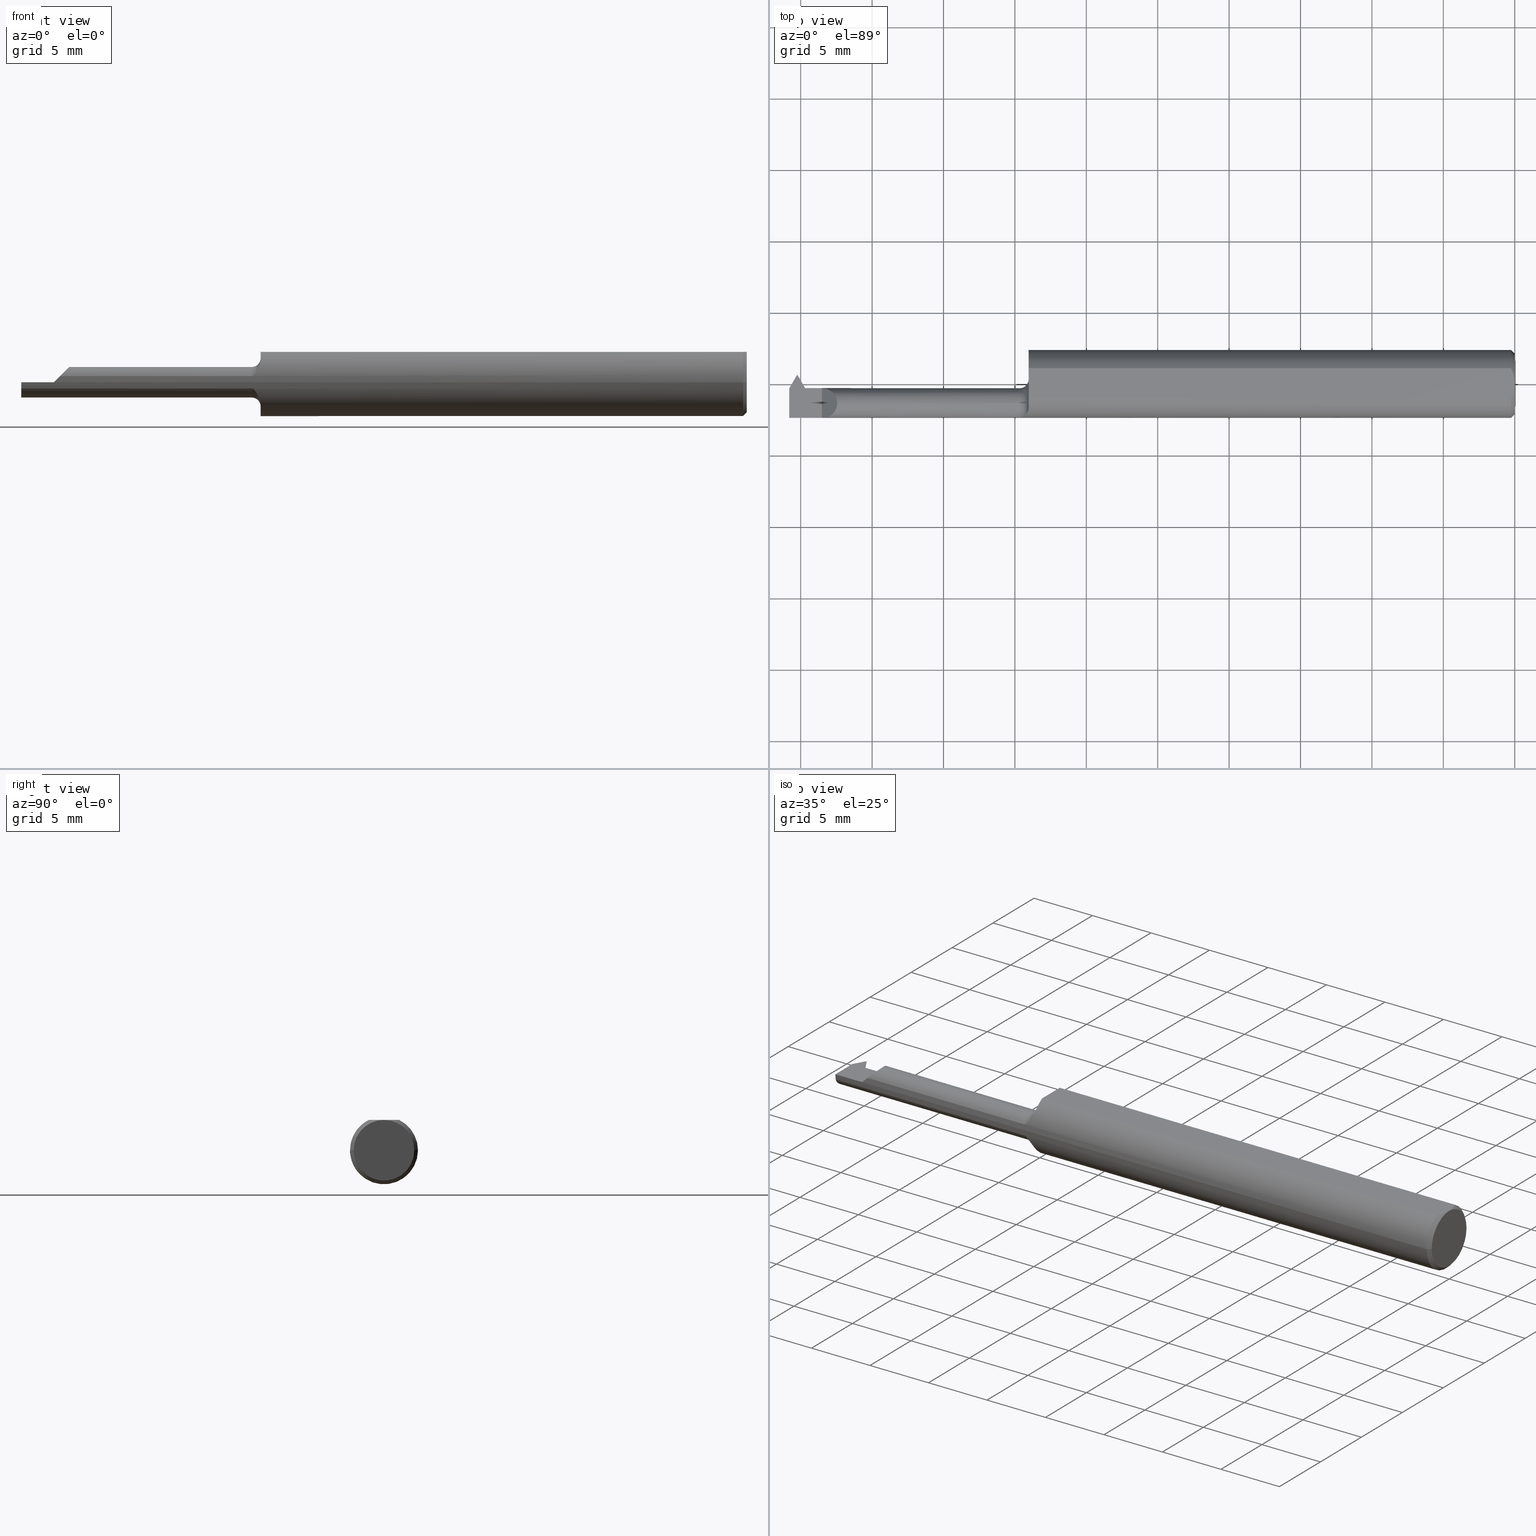
[diagram: canonical four-view strip — front | top / right | iso, engineering-drawing reading convention]
A machine part, canonical four-view strip (front | top / right | iso — engineering-drawing reading convention). The complete STEP part file that produces these views, byte-faithful:
ISO-10303-21;
HEADER;
FILE_DESCRIPTION (( 'STEP AP203' ),
    '1' );
FILE_NAME ('231660-LHTT120600.STEP',
    '2025-01-18T00:51:54',
    ( '' ),
    ( '' ),
    'SwSTEP 2.0',
    'SolidWorks 2024',
    '' );
FILE_SCHEMA (( 'CONFIG_CONTROL_DESIGN' ));
ENDSEC;

DATA;
#1 = CARTESIAN_POINT ( 'NONE',  ( 1.435927601666783992E-16, -0.01159999999997600277, 0.000000000000000000 ) ) ;
#2 = CARTESIAN_POINT ( 'NONE',  ( -2.000000000000000000, 0.4734168684012306505, 0.4753073135405893601 ) ) ;
#3 = DIRECTION ( 'NONE',  ( 0.000000000000000000, -1.000000000000000000, -6.220152829232043114E-17 ) ) ;
#4 = CARTESIAN_POINT ( 'NONE',  ( -1.951215390309173348, -0.04005868909020297158, -0.04200000000000000955 ) ) ;
#5 = CARTESIAN_POINT ( 'NONE',  ( -1.356246254951165797, -0.09087486346019997552, 0.02250610835622541411 ) ) ;
#6 = DIRECTION ( 'NONE',  ( 0.000000000000000000, 0.000000000000000000, 1.000000000000000000 ) ) ;
#7 = LENGTH_MEASURE_WITH_UNIT ( LENGTH_MEASURE( 0.02539999999999999897 ), #796 );
#8 = CARTESIAN_POINT ( 'NONE',  ( -2.000000000000000000, -0.05360000000000016140, 0.04200000000000003730 ) ) ;
#9 = VECTOR ( 'NONE', #759, 39.37007874015748143 ) ;
#10 = VERTEX_POINT ( 'NONE', #730 ) ;
#11 = DIRECTION ( 'NONE',  ( 0.1993679344171976064, 0.000000000000000000, -0.9799247046208294787 ) ) ;
#12 = CARTESIAN_POINT ( 'NONE',  ( -1.968873713548269011, -0.03352485898874427855, -0.1077641248137685415 ) ) ;
#13 = CYLINDRICAL_SURFACE ( 'NONE', #771, 0.04200000000000003730 ) ;
#14 = ORIENTED_EDGE ( 'NONE', *, *, #388, .F. ) ;
#15 = EDGE_CURVE ( 'NONE', #64, #467, #754, .T. ) ;
#16 = VERTEX_POINT ( 'NONE', #4 ) ;
#17 = LINE ( 'NONE', #328, #447 ) ;
#18 = FACE_OUTER_BOUND ( 'NONE', #271, .T. ) ;
#19 = PERSON_AND_ORGANIZATION ( #195, #413 ) ;
#20 = ORIENTED_EDGE ( 'NONE', *, *, #601, .F. ) ;
#21 = ORIENTED_EDGE ( 'NONE', *, *, #448, .T. ) ;
#22 = FACE_OUTER_BOUND ( 'NONE', #159, .T. ) ;
#23 = PERSON_AND_ORGANIZATION ( #195, #413 ) ;
#24 = ORIENTED_EDGE ( 'NONE', *, *, #736, .T. ) ;
#25 = VECTOR ( 'NONE', #853, 39.37007874015748143 ) ;
#26 = ORIENTED_EDGE ( 'NONE', *, *, #737, .F. ) ;
#27 = DIRECTION ( 'NONE',  ( 1.000000000000000000, 0.000000000000000000, 0.000000000000000000 ) ) ;
#28 = AXIS2_PLACEMENT_3D ( 'NONE', #363, #1004, #838 ) ;
#29 = AXIS2_PLACEMENT_3D ( 'NONE', #232, #785, #3 ) ;
#30 = COORDINATED_UNIVERSAL_TIME_OFFSET ( 8, 0, .BEHIND. ) ;
#31 = FACE_OUTER_BOUND ( 'NONE', #614, .T. ) ;
#32 = VERTEX_POINT ( 'NONE', #82 ) ;
#33 = LINE ( 'NONE', #494, #719 ) ;
#34 = B_SPLINE_CURVE_WITH_KNOTS ( 'NONE', 3,
 ( #711, #243, #951, #895 ),
 .UNSPECIFIED., .F., .F.,
 ( 4, 4 ),
 ( 0.0006429768761302254079, 0.001744210492668871139 ),
 .UNSPECIFIED. ) ;
#35 = CARTESIAN_POINT ( 'NONE',  ( -1.951215390309173348, -0.03635506046399800822, -0.03829637137379500456 ) ) ;
#36 = EDGE_LOOP ( 'NONE', ( #734, #289, #171, #189, #927, #824, #147 ) ) ;
#37 = CARTESIAN_POINT ( 'NONE',  ( -1.364999999999999769, -0.09207014925373141478, 0.01685371224376549376 ) ) ;
#38 = DIRECTION ( 'NONE',  ( 0.000000000000000000, 0.000000000000000000, 1.000000000000000000 ) ) ;
#39 = FACE_OUTER_BOUND ( 'NONE', #954, .T. ) ;
#40 = EDGE_LOOP ( 'NONE', ( #332, #797, #818, #758, #961, #404, #912, #63 ) ) ;
#41 = AXIS2_PLACEMENT_3D ( 'NONE', #572, #476, #186 ) ;
#42 = DIRECTION ( 'NONE',  ( -0.5000000000000140998, 0.8660254037844304920, 0.000000000000000000 ) ) ;
#43 = CARTESIAN_POINT ( 'NONE',  ( 0.000000000000000000, 1.836970198721030920E-16, 0.000000000000000000 ) ) ;
#44 = ORIENTED_EDGE ( 'NONE', *, *, #898, .T. ) ;
#45 = EDGE_CURVE ( 'NONE', #32, #64, #34, .T. ) ;
#46 = CARTESIAN_POINT ( 'NONE',  ( -2.000000000000000000, -0.09207014925373151193, -0.01685371224376489355 ) ) ;
#47 = DIMENSIONAL_EXPONENTS ( 1.000000000000000000, 0.000000000000000000, 0.000000000000000000, 0.000000000000000000, 0.000000000000000000, 0.000000000000000000, 0.000000000000000000 ) ;
#48 = CARTESIAN_POINT ( 'NONE',  ( -1.876624134996073723, -0.08619125531309880517, -0.3666277330086080144 ) ) ;
#49 = ORIENTED_EDGE ( 'NONE', *, *, #908, .F. ) ;
#50 = CARTESIAN_POINT ( 'NONE',  ( -1.867999999999999661, -0.07078705688761263715, 0.04200000000000003730 ) ) ;
#51 = DIRECTION ( 'NONE',  ( 1.000000000000000000, 1.224646799147353700E-16, -0.000000000000000000 ) ) ;
#52 = ORIENTED_EDGE ( 'NONE', *, *, #323, .T. ) ;
#53 = EDGE_CURVE ( 'NONE', #107, #921, #566, .T. ) ;
#54 = FACE_OUTER_BOUND ( 'NONE', #379, .T. ) ;
#55 = VECTOR ( 'NONE', #555, 39.37007874015748854 ) ;
#56 = CARTESIAN_POINT ( 'NONE',  ( -1.949999999999999956, 0.01787431140439788013, -0.01700000000000000122 ) ) ;
#57 = VECTOR ( 'NONE', #943, 39.37007874015748143 ) ;
#58 = ORIENTED_EDGE ( 'NONE', *, *, #174, .T. ) ;
#59 = ORIENTED_EDGE ( 'NONE', *, *, #196, .F. ) ;
#60 = DIRECTION ( 'NONE',  ( -1.000000000000000000, 0.000000000000000000, 8.387933210295857967E-19 ) ) ;
#61 = EDGE_CURVE ( 'NONE', #603, #944, #168, .T. ) ;
#62 = DIRECTION ( 'NONE',  ( 0.000000000000000000, 0.000000000000000000, 1.000000000000000000 ) ) ;
#63 = ORIENTED_EDGE ( 'NONE', *, *, #830, .F. ) ;
#64 = VERTEX_POINT ( 'NONE', #250 ) ;
#65 = CARTESIAN_POINT ( 'NONE',  ( -1.339999999999999858, 1.959434878635771270E-17, 0.000000000000000000 ) ) ;
#66 = CARTESIAN_POINT ( 'NONE',  ( -1.904343558428414518, -0.09360000000000014142, 0.005656441571585578247 ) ) ;
#67 = ORIENTED_EDGE ( 'NONE', *, *, #244, .T. ) ;
#68 = DIRECTION ( 'NONE',  ( -1.224646799147353700E-16, 1.000000000000000000, 0.000000000000000000 ) ) ;
#69 = VECTOR ( 'NONE', #535, 39.37007874015748854 ) ;
#70 = AXIS2_PLACEMENT_3D ( 'NONE', #211, #165, #564 ) ;
#71 = LINE ( 'NONE', #942, #698 ) ;
#72 = APPLICATION_PROTOCOL_DEFINITION ( 'international standard', 'config_control_design', 1994, #484 ) ;
#73 = ORIENTED_EDGE ( 'NONE', *, *, #202, .T. ) ;
#74 = VECTOR ( 'NONE', #562, 39.37007874015748143 ) ;
#75 = DIRECTION ( 'NONE',  ( -1.000000000000000000, -0.000000000000000000, -0.000000000000000000 ) ) ;
#76 = FACE_OUTER_BOUND ( 'NONE', #985, .T. ) ;
#77 = DIRECTION ( 'NONE',  ( 0.000000000000000000, 0.000000000000000000, 1.000000000000000000 ) ) ;
#78 = EDGE_LOOP ( 'NONE', ( #832, #786, #925, #113, #331, #753 ) ) ;
#79 = CARTESIAN_POINT ( 'NONE',  ( -1.340533642810060488, -0.07379783313304059955, 0.05781434694824254955 ) ) ;
#80 = CARTESIAN_POINT ( 'NONE',  ( -2.000000000000000000, -0.09360000000000014142, 7.549139889266259604E-20 ) ) ;
#81 = CARTESIAN_POINT ( 'NONE',  ( -1.951215390309173348, -0.01493879615499761788, -0.01641070739654924143 ) ) ;
#82 = CARTESIAN_POINT ( 'NONE',  ( -0.009999999999999620304, -0.04209513035969822403, 0.08360000000000007703 ) ) ;
#83 = ORIENTED_EDGE ( 'NONE', *, *, #276, .F. ) ;
#84 = PLANE ( 'NONE',  #571 ) ;
#85 = ADVANCED_FACE ( 'NONE', ( #336 ), #487, .F. ) ;
#86 = CARTESIAN_POINT ( 'NONE',  ( -1.364999999999999769, -0.05360000000000016140, 0.000000000000000000 ) ) ;
#87 = CC_DESIGN_PERSON_AND_ORGANIZATION_ASSIGNMENT ( #640, #406, ( #516 ) ) ;
#88 = DIRECTION ( 'NONE',  ( 1.000000000000000000, 1.224646799147353700E-16, -0.000000000000000000 ) ) ;
#89 = DIRECTION ( 'NONE',  ( 1.000000000000000000, 1.553500558300392805E-17, 0.000000000000000000 ) ) ;
#90 = VECTOR ( 'NONE', #544, 39.37007874015748143 ) ;
#91 = VECTOR ( 'NONE', #297, 39.37007874015748143 ) ;
#92 = ORIENTED_EDGE ( 'NONE', *, *, #495, .F. ) ;
#93 = DIRECTION ( 'NONE',  ( 1.000000000000000000, 1.224646799147353700E-16, -0.000000000000000000 ) ) ;
#94 = CIRCLE ( 'NONE', #934, 0.09360000000000007203 ) ;
#95 = CARTESIAN_POINT ( 'NONE',  ( -1.867999999999999661, -0.05360000000000016140, 0.04200000000000003730 ) ) ;
#96 = EDGE_CURVE ( 'NONE', #637, #274, #162, .T. ) ;
#97 = APPROVAL_DATE_TIME ( #645, #636 ) ;
#98 = ORIENTED_EDGE ( 'NONE', *, *, #757, .F. ) ;
#99 = VERTEX_POINT ( 'NONE', #237 ) ;
#100 = DIRECTION ( 'NONE',  ( -0.000000000000000000, 0.7071067811865437980, 0.7071067811865512365 ) ) ;
#101 = CARTESIAN_POINT ( 'NONE',  ( 1.435927601666783992E-16, -0.01159999999997600277, 0.000000000000000000 ) ) ;
#102 = ORIENTED_EDGE ( 'NONE', *, *, #707, .F. ) ;
#103 = LINE ( 'NONE', #727, #430 ) ;
#104 = CALENDAR_DATE ( 2025, 17, 1 ) ;
#105 = EDGE_LOOP ( 'NONE', ( #1000, #151, #369, #180, #748, #83, #596, #964 ) ) ;
#106 = CIRCLE ( 'NONE', #346, 0.09360000000000007203 ) ;
#107 = VERTEX_POINT ( 'NONE', #889 ) ;
#108 = DIRECTION ( 'NONE',  ( -4.615662204303212960E-17, 0.3768974211598653534, 0.9262550048032361927 ) ) ;
#109 = EDGE_CURVE ( 'NONE', #546, #327, #813, .T. ) ;
#110 = CC_DESIGN_APPROVAL ( #636, ( #552 ) ) ;
#111 = APPROVAL_ROLE ( '' ) ;
#112 = LINE ( 'NONE', #974, #996 ) ;
#113 = ORIENTED_EDGE ( 'NONE', *, *, #283, .F. ) ;
#114 = CARTESIAN_POINT ( 'NONE',  ( -2.000000000000000000, -6.123233995736764803E-17, 0.000000000000000000 ) ) ;
#115 = DIRECTION ( 'NONE',  ( -4.390901246685755635E-17, -0.7071067811865437980, -0.7071067811865511255 ) ) ;
#116 = ORIENTED_EDGE ( 'NONE', *, *, #348, .T. ) ;
#117 = CARTESIAN_POINT ( 'NONE',  ( -2.527892854954154511E-33, 1.627223653990697955E-16, 0.08360000000000007703 ) ) ;
#118 = EDGE_CURVE ( 'NONE', #467, #664, #655, .T. ) ;
#119 = EDGE_CURVE ( 'NONE', #163, #664, #547, .T. ) ;
#120 = CARTESIAN_POINT ( 'NONE',  ( -0.009999999999999630712, 0.09360000000000028020, 0.000000000000000000 ) ) ;
#121 = EDGE_CURVE ( 'NONE', #793, #603, #233, .T. ) ;
#122 = VECTOR ( 'NONE', #402, 39.37007874015748143 ) ;
#123 = ORIENTED_EDGE ( 'NONE', *, *, #687, .F. ) ;
#124 = AXIS2_PLACEMENT_3D ( 'NONE', #277, #919, #203 ) ;
#125 = DIRECTION ( 'NONE',  ( -0.000000000000000000, 0.000000000000000000, 1.000000000000000000 ) ) ;
#126 = AXIS2_PLACEMENT_3D ( 'NONE', #995, #511, #1001 ) ;
#127 = APPROVAL_PERSON_ORGANIZATION ( #249, #947, #242 ) ;
#128 = DIRECTION ( 'NONE',  ( 0.000000000000000000, -0.7071067811865437980, -0.7071067811865512365 ) ) ;
#129 = VERTEX_POINT ( 'NONE', #875 ) ;
#130 = CARTESIAN_POINT ( 'NONE',  ( -1.893146287756234614, -0.09207014925373138703, 0.01685371224376541049 ) ) ;
#131 = CARTESIAN_POINT ( 'NONE',  ( -1.951215390309173348, -0.05360000000000016140, 0.000000000000000000 ) ) ;
#132 = ORIENTED_EDGE ( 'NONE', *, *, #742, .F. ) ;
#133 = CARTESIAN_POINT ( 'NONE',  ( -0.009999999999999609895, -0.09359999999999989162, 1.146269404001923546E-17 ) ) ;
#134 = FACE_OUTER_BOUND ( 'NONE', #350, .T. ) ;
#135 =( BOUNDED_CURVE ( )  B_SPLINE_CURVE ( 3, ( #230, #483, #381, #95 ),
 .UNSPECIFIED., .F., .F. ) 
 B_SPLINE_CURVE_WITH_KNOTS ( ( 4, 4 ),
 ( 1.570796326794896558, 3.141592653589793116 ),
 .UNSPECIFIED. ) 
 CURVE ( )  GEOMETRIC_REPRESENTATION_ITEM ( )  RATIONAL_B_SPLINE_CURVE ( ( 1.000000000000000000, 0.8047378541243649375, 0.8047378541243649375, 1.000000000000000000 ) ) 
 REPRESENTATION_ITEM ( '' )  );
#136 = VERTEX_POINT ( 'NONE', #869 ) ;
#137 = DIRECTION ( 'NONE',  ( -1.000000000000000000, -0.000000000000000000, -0.000000000000000000 ) ) ;
#138 = EDGE_CURVE ( 'NONE', #608, #580, #803, .T. ) ;
#139 = CONICAL_SURFACE ( 'NONE', #549, 0.08360000000000042397, 0.7853981633974500554 ) ;
#140 = EDGE_CURVE ( 'NONE', #107, #700, #482, .T. ) ;
#141 = ADVANCED_FACE ( 'NONE', ( #506 ), #273, .T. ) ;
#142 = CARTESIAN_POINT ( 'NONE',  ( -1.910000000000000142, -0.09360000000000014142, 0.000000000000000000 ) ) ;
#143 = ORIENTED_EDGE ( 'NONE', *, *, #649, .T. ) ;
#144 = DIRECTION ( 'NONE',  ( 0.8486396879976070284, -0.4899623523104036926, 0.1993679344171975787 ) ) ;
#145 = PLANE ( 'NONE',  #1009 ) ;
#146 = DIRECTION ( 'NONE',  ( 1.000000000000000000, 0.000000000000000000, 0.000000000000000000 ) ) ;
#147 = ORIENTED_EDGE ( 'NONE', *, *, #941, .T. ) ;
#148 = CARTESIAN_POINT ( 'NONE',  ( -1.339999999999999858, -0.05360000000000016140, 0.000000000000000000 ) ) ;
#149 = CARTESIAN_POINT ( 'NONE',  ( -1.340550322315970710, -0.07386771902689347191, -0.05772280571356890738 ) ) ;
#150 = CARTESIAN_POINT ( 'NONE',  ( -1.339999999999999858, 0.09360000000000025244, 0.000000000000000000 ) ) ;
#151 = ORIENTED_EDGE ( 'NONE', *, *, #888, .F. ) ;
#152 = CARTESIAN_POINT ( 'NONE',  ( -1.951215390309173348, -0.01530362862620497991, -0.01724493953600175072 ) ) ;
#153 = PLANE ( 'NONE',  #427 ) ;
#154 = ORIENTED_EDGE ( 'NONE', *, *, #477, .F. ) ;
#155 = APPROVAL_PERSON_ORGANIZATION ( #729, #658, #173 ) ;
#156 = CARTESIAN_POINT ( 'NONE',  ( -2.000000000000000000, -0.05360000000000015447, -0.04199999999999997485 ) ) ;
#157 = CARTESIAN_POINT ( 'NONE',  ( -1.364999999999999769, -0.05360000000000016140, 0.000000000000000000 ) ) ;
#158 = CARTESIAN_POINT ( 'NONE',  ( 1.023804724087210221E-17, -0.08360000000000022968, 0.000000000000000000 ) ) ;
#159 = EDGE_LOOP ( 'NONE', ( #228, #656 ) ) ;
#160 = DIRECTION ( 'NONE',  ( 0.7071067811865434649, 0.000000000000000000, -0.7071067811865516806 ) ) ;
#161 = CARTESIAN_POINT ( 'NONE',  ( -1.339999999999999858, -0.06665037313362623395, -0.06571672360269598112 ) ) ;
#162 = LINE ( 'NONE', #175, #122 ) ;
#163 = VERTEX_POINT ( 'NONE', #120 ) ;
#164 = CARTESIAN_POINT ( 'NONE',  ( -2.000000000000000000, -6.123233995736764803E-17, 0.000000000000000000 ) ) ;
#165 = DIRECTION ( 'NONE',  ( -1.000000000000000000, -1.224646799147374408E-16, 0.000000000000000000 ) ) ;
#166 = EDGE_CURVE ( 'NONE', #944, #193, #911, .T. ) ;
#167 = COORDINATED_UNIVERSAL_TIME_OFFSET ( 8, 0, .BEHIND. ) ;
#168 = LINE ( 'NONE', #733, #293 ) ;
#169 = AXIS2_PLACEMENT_3D ( 'NONE', #765, #681, #42 ) ;
#170 = AXIS2_PLACEMENT_3D ( 'NONE', #65, #550, #872 ) ;
#171 = ORIENTED_EDGE ( 'NONE', *, *, #455, .T. ) ;
#172 = FACE_OUTER_BOUND ( 'NONE', #36, .T. ) ;
#173 = APPROVAL_ROLE ( '' ) ;
#174 = EDGE_CURVE ( 'NONE', #274, #690, #106, .T. ) ;
#175 = CARTESIAN_POINT ( 'NONE',  ( -2.000000000000000000, -6.123233995736764803E-17, 7.549139889266262011E-20 ) ) ;
#176 = ORIENTED_EDGE ( 'NONE', *, *, #757, .T. ) ;
#177 = CARTESIAN_POINT ( 'NONE',  ( -1.949212265386444987, -0.01530362862620470756, -0.01724493953600149398 ) ) ;
#178 = DATE_AND_TIME ( #899, #534 ) ;
#179 = DIRECTION ( 'NONE',  ( -1.000000000000000000, -0.000000000000000000, -0.000000000000000000 ) ) ;
#180 = ORIENTED_EDGE ( 'NONE', *, *, #520, .T. ) ;
#181 = DIRECTION ( 'NONE',  ( 0.000000000000000000, 1.000000000000000000, 1.439633217571807837E-16 ) ) ;
#182 = SECURITY_CLASSIFICATION_LEVEL ( 'unclassified' ) ;
#183 = DIRECTION ( 'NONE',  ( 0.000000000000000000, 0.000000000000000000, 1.000000000000000000 ) ) ;
#184 = CIRCLE ( 'NONE', #248, 0.04199999999999994710 ) ;
#185 = VERTEX_POINT ( 'NONE', #743 ) ;
#186 = DIRECTION ( 'NONE',  ( -1.140094147996903776E-16, 1.000000000000000000, 8.881784197001252323E-16 ) ) ;
#187 = CC_DESIGN_SECURITY_CLASSIFICATION ( #552, ( #740 ) ) ;
#188 = LINE ( 'NONE', #661, #263 ) ;
#189 = ORIENTED_EDGE ( 'NONE', *, *, #937, .F. ) ;
#190 = CYLINDRICAL_SURFACE ( 'NONE', #28, 0.09360000000000007203 ) ;
#191 = ADVANCED_FACE ( 'NONE', ( #31 ), #139, .T. ) ;
#192 = DIRECTION ( 'NONE',  ( -1.000000000000000000, -1.224646799147374408E-16, 0.000000000000000000 ) ) ;
#193 = VERTEX_POINT ( 'NONE', #752 ) ;
#194 = CARTESIAN_POINT ( 'NONE',  ( -0.009999999999999620304, 0.04209513035969856404, 0.08360000000000007703 ) ) ;
#195 = PERSON ( 'UNSPECIFIED', 'UNSPECIFIED', 'UNSPECIFIED', ('UNSPECIFIED'), ('UNSPECIFIED'), ('UNSPECIFIED') ) ;
#196 = EDGE_CURVE ( 'NONE', #359, #881, #340, .T. ) ;
#197 = LINE ( 'NONE', #432, #1008 ) ;
#198 = ORIENTED_EDGE ( 'NONE', *, *, #425, .F. ) ;
#199 = AXIS2_PLACEMENT_3D ( 'NONE', #878, #471, #795 ) ;
#200 = CARTESIAN_POINT ( 'NONE',  ( -2.000000000000000000, -0.05360000000000015447, -0.04200000000000003730 ) ) ;
#201 = AXIS2_PLACEMENT_3D ( 'NONE', #1, #308, #865 ) ;
#202 = EDGE_CURVE ( 'NONE', #603, #608, #188, .T. ) ;
#203 = DIRECTION ( 'NONE',  ( 1.224646799147374408E-16, -1.000000000000000000, 0.000000000000000000 ) ) ;
#204 = ORIENTED_EDGE ( 'NONE', *, *, #991, .F. ) ;
#205 = CARTESIAN_POINT ( 'NONE',  ( -2.000000000000000000, -0.05360000000000016140, 0.000000000000000000 ) ) ;
#206 = DIRECTION ( 'NONE',  ( 0.000000000000000000, 1.776356839400250267E-15, 1.000000000000000000 ) ) ;
#207 = B_SPLINE_CURVE_WITH_KNOTS ( 'NONE', 3,
 ( #794, #615, #79, #856, #936, #219, #940, #384, #5, #539, #313, #457, #783, #375 ),
 .UNSPECIFIED., .F., .F.,
 ( 4, 2, 2, 2, 2, 2, 4 ),
 ( 4.596658917165095357E-05, 0.0004513928604864246856, 0.0008568191318011987362, 0.001262245403115972624, 0.001464958538773365477, 0.001566315106602061795, 0.001667671674430757896 ),
 .UNSPECIFIED. ) ;
#208 = VERTEX_POINT ( 'NONE', #502 ) ;
#209 = EDGE_CURVE ( 'NONE', #99, #972, #426, .T. ) ;
#210 = CARTESIAN_POINT ( 'NONE',  ( -1.867999999999999661, -0.05360000000000016140, 0.04200000000000003730 ) ) ;
#211 = CARTESIAN_POINT ( 'NONE',  ( -0.009999999999999620304, 1.824723730729557662E-16, 0.000000000000000000 ) ) ;
#212 = ORIENTED_EDGE ( 'NONE', *, *, #937, .T. ) ;
#213 = CARTESIAN_POINT ( 'NONE',  ( -2.000000000000000000, -0.09360000000000014142, 1.146269404001923546E-17 ) ) ;
#214 = AXIS2_PLACEMENT_3D ( 'NONE', #355, #823, #183 ) ;
#215 = AXIS2_PLACEMENT_3D ( 'NONE', #324, #709, #309 ) ;
#216 = CIRCLE ( 'NONE', #836, 0.06700000000000005951 ) ;
#217 = CARTESIAN_POINT ( 'NONE',  ( -2.000000000000000000, -0.05360000000000016140, 0.000000000000000000 ) ) ;
#218 = ORIENTED_EDGE ( 'NONE', *, *, #403, .T. ) ;
#219 = CARTESIAN_POINT ( 'NONE',  ( -1.347959848387990212, -0.08665969772250080305, 0.03571742193949809657 ) ) ;
#220 = ADVANCED_FACE ( 'NONE', ( #39 ), #500, .F. ) ;
#221 = DIRECTION ( 'NONE',  ( -0.000000000000000000, 0.7071067811865437980, 0.7071067811865512365 ) ) ;
#222 = CARTESIAN_POINT ( 'NONE',  ( -1.978999999999999204, 0.02439999999999992522, 0.000000000000000000 ) ) ;
#223 = ORIENTED_EDGE ( 'NONE', *, *, #329, .T. ) ;
#224 = CARTESIAN_POINT ( 'NONE',  ( -1.475179802689745800, -0.8516954561860243800, -0.01700000000005074535 ) ) ;
#225 = CARTESIAN_POINT ( 'NONE',  ( -1.339999999999999858, -0.06665037313362623395, -0.06571672360269598112 ) ) ;
#226 = EDGE_CURVE ( 'NONE', #580, #1012, #112, .T. ) ;
#227 = ORIENTED_EDGE ( 'NONE', *, *, #941, .F. ) ;
#228 = ORIENTED_EDGE ( 'NONE', *, *, #453, .T. ) ;
#229 = DIRECTION ( 'NONE',  ( 0.4999999999999887312, 0.8660254037844451469, 0.000000000000000000 ) ) ;
#230 = CARTESIAN_POINT ( 'NONE',  ( -1.910000000000000142, -0.01160000000000015706, 0.000000000000000000 ) ) ;
#231 = CIRCLE ( 'NONE', #633, 0.04200000000000003730 ) ;
#232 = CARTESIAN_POINT ( 'NONE',  ( -1.949999999999999956, -0.05360000000000016140, -0.04200000000000000955 ) ) ;
#233 = LINE ( 'NONE', #579, #55 ) ;
#234 = DIRECTION ( 'NONE',  ( 1.000000000000000000, 1.224646799147353700E-16, -0.000000000000000000 ) ) ;
#235 = CARTESIAN_POINT ( 'NONE',  ( -1.978773857912774714, -0.007125688595601828088, -0.04199999999999996098 ) ) ;
#236 = PLANE ( 'NONE',  #808 ) ;
#237 = CARTESIAN_POINT ( 'NONE',  ( -1.947876594154175134, -0.01493879615499853555, -0.01641070739655242985 ) ) ;
#238 = ORIENTED_EDGE ( 'NONE', *, *, #926, .F. ) ;
#239 = LINE ( 'NONE', #338, #269 ) ;
#240 = CARTESIAN_POINT ( 'NONE',  ( -1.948936222738089086, -0.01272802906275372591, -0.01120246651200247461 ) ) ;
#241 = ADVANCED_FACE ( 'NONE', ( #270 ), #529, .T. ) ;
#242 = APPROVAL_ROLE ( '' ) ;
#243 = CARTESIAN_POINT ( 'NONE',  ( -0.004072204388638417730, -0.02891446873729291989, 0.08360000000000007703 ) ) ;
#244 = EDGE_CURVE ( 'NONE', #793, #10, #835, .T. ) ;
#245 = EDGE_LOOP ( 'NONE', ( #988, #212, #691, #1006, #176 ) ) ;
#246 = PLANE ( 'NONE',  #920 ) ;
#247 = DIRECTION ( 'NONE',  ( 1.000000000000000000, 1.224646799147353700E-16, -0.000000000000000000 ) ) ;
#248 = AXIS2_PLACEMENT_3D ( 'NONE', #704, #524, #62 ) ;
#249 = PERSON_AND_ORGANIZATION ( #195, #413 ) ;
#250 = CARTESIAN_POINT ( 'NONE',  ( -2.527892854954154511E-33, 1.627223653990697955E-16, 0.08360000000000007703 ) ) ;
#251 = CIRCLE ( 'NONE', #983, 0.08360000000000042397 ) ;
#252 = ORIENTED_EDGE ( 'NONE', *, *, #61, .T. ) ;
#253 = CARTESIAN_POINT ( 'NONE',  ( -2.000000000000000000, 0.1185999999999999832, 0.08360000000000010478 ) ) ;
#254 = EDGE_CURVE ( 'NONE', #561, #107, #930, .T. ) ;
#255 = DATE_TIME_ROLE ( 'creation_date' ) ;
#256 = DIRECTION ( 'NONE',  ( -1.140094147996903776E-16, 1.000000000000000000, 0.000000000000000000 ) ) ;
#257 = EDGE_LOOP ( 'NONE', ( #635, #67, #956, #672, #461, #326 ) ) ;
#258 = CARTESIAN_POINT ( 'NONE',  ( -1.339999999999999858, 1.959434878635771270E-17, 0.000000000000000000 ) ) ;
#259 = DIRECTION ( 'NONE',  ( -1.000000000000000000, -0.000000000000000000, -0.000000000000000000 ) ) ;
#260 = EDGE_LOOP ( 'NONE', ( #798, #705, #98, #726 ) ) ;
#261 = CALENDAR_DATE ( 2025, 17, 1 ) ;
#262 = CARTESIAN_POINT ( 'NONE',  ( 0.000000000000000000, 1.836970198721030920E-16, 0.000000000000000000 ) ) ;
#263 = VECTOR ( 'NONE', #115, 39.37007874015748854 ) ;
#264 = ORIENTED_EDGE ( 'NONE', *, *, #486, .F. ) ;
#265 = CIRCLE ( 'NONE', #738, 0.04199999999999994710 ) ;
#266 = EDGE_CURVE ( 'NONE', #975, #764, #583, .T. ) ;
#267 = VECTOR ( 'NONE', #518, 39.37007874015748143 ) ;
#268 = DIRECTION ( 'NONE',  ( 0.000000000000000000, 0.000000000000000000, 1.000000000000000000 ) ) ;
#269 = VECTOR ( 'NONE', #100, 39.37007874015748143 ) ;
#270 = FACE_OUTER_BOUND ( 'NONE', #521, .T. ) ;
#271 = EDGE_LOOP ( 'NONE', ( #92, #864, #21, #828 ) ) ;
#272 = PLANE ( 'NONE',  #652 ) ;
#273 = CYLINDRICAL_SURFACE ( 'NONE', #349, 0.04200000000000003730 ) ;
#274 = VERTEX_POINT ( 'NONE', #900 ) ;
#275 = CYLINDRICAL_SURFACE ( 'NONE', #756, 0.04200000000000003730 ) ;
#276 = EDGE_CURVE ( 'NONE', #327, #881, #197, .T. ) ;
#277 = CARTESIAN_POINT ( 'NONE',  ( 0.000000000000000000, 1.836970198721030920E-16, 0.000000000000000000 ) ) ;
#278 = VECTOR ( 'NONE', #179, 39.37007874015748143 ) ;
#279 = ORIENTED_EDGE ( 'NONE', *, *, #769, .T. ) ;
#280 = AXIS2_PLACEMENT_3D ( 'NONE', #924, #768, #288 ) ;
#281 = FACE_OUTER_BOUND ( 'NONE', #1018, .T. ) ;
#282 = LOCAL_TIME ( 16, 51, 54.00000000000000000, #490 ) ;
#283 = EDGE_CURVE ( 'NONE', #99, #327, #760, .T. ) ;
#284 = DIRECTION ( 'NONE',  ( 0.000000000000000000, 0.000000000000000000, 1.000000000000000000 ) ) ;
#285 = ADVANCED_FACE ( 'NONE', ( #992 ), #570, .T. ) ;
#286 = ORIENTED_EDGE ( 'NONE', *, *, #649, .F. ) ;
#287 = PLANE ( 'NONE',  #446 ) ;
#288 = DIRECTION ( 'NONE',  ( 0.000000000000000000, 0.000000000000000000, -1.000000000000000000 ) ) ;
#289 = ORIENTED_EDGE ( 'NONE', *, *, #737, .T. ) ;
#290 = CARTESIAN_POINT ( 'NONE',  ( -2.000000000000000000, -0.05360000000000016140, 0.000000000000000000 ) ) ;
#291 = DIRECTION ( 'NONE',  ( 0.000000000000000000, 1.000000000000000000, 6.220152829232043114E-17 ) ) ;
#292 = VERTEX_POINT ( 'NONE', #747 ) ;
#293 = VECTOR ( 'NONE', #390, 39.37007874015748854 ) ;
#294 = EDGE_LOOP ( 'NONE', ( #49, #507, #862, #493, #567, #882, #204 ) ) ;
#295 = PRODUCT_DEFINITION ( 'UNKNOWN', '', #740, #708 ) ;
#296 = VECTOR ( 'NONE', #128, 39.37007874015748143 ) ;
#297 = DIRECTION ( 'NONE',  ( -1.000000000000000000, -1.224646799147353700E-16, 0.000000000000000000 ) ) ;
#298 = AXIS2_PLACEMENT_3D ( 'NONE', #692, #829, #125 ) ;
#299 = APPROVAL_PERSON_ORGANIZATION ( #893, #636, #111 ) ;
#300 = DIRECTION ( 'NONE',  ( 1.000000000000000000, 1.224646799147353700E-16, -0.000000000000000000 ) ) ;
#301 = AXIS2_PLACEMENT_3D ( 'NONE', #378, #146, #723 ) ;
#302 = DIRECTION ( 'NONE',  ( -0.000000000000000000, 0.000000000000000000, 1.000000000000000000 ) ) ;
#303 = ORIENTED_EDGE ( 'NONE', *, *, #504, .F. ) ;
#304 = CARTESIAN_POINT ( 'NONE',  ( -2.000000000000000000, 0.04209513035969831424, 0.08360000000000007703 ) ) ;
#305 = CARTESIAN_POINT ( 'NONE',  ( -1.023804724087210221E-17, 0.08360000000000061826, 1.023804724087192502E-17 ) ) ;
#306 = CARTESIAN_POINT ( 'NONE',  ( -1.951215390309173348, -0.05360000000000015447, -0.04199999999999997485 ) ) ;
#307 = VERTEX_POINT ( 'NONE', #35 ) ;
#308 = DIRECTION ( 'NONE',  ( 1.213018043899250328E-14, -0.9799247046208295897, 0.1993679344171976342 ) ) ;
#309 = DIRECTION ( 'NONE',  ( 0.000000000000000000, 1.000000000000000000, 0.000000000000000000 ) ) ;
#310 = PLANE ( 'NONE',  #464 ) ;
#311 = CARTESIAN_POINT ( 'NONE',  ( -0.009999999999999620304, 1.824723730729557662E-16, 0.000000000000000000 ) ) ;
#312 = ORIENTED_EDGE ( 'NONE', *, *, #990, .F. ) ;
#313 = CARTESIAN_POINT ( 'NONE',  ( -1.360061339936134317, -0.09170362580914927231, 0.01875949767695260506 ) ) ;
#314 = VECTOR ( 'NONE', #221, 39.37007874015748143 ) ;
#315 = TOROIDAL_SURFACE ( 'NONE', #199, 0.06700000000000005951, 0.02499999999999993547 ) ;
#316 = PLANE ( 'NONE',  #903 ) ;
#317 = CARTESIAN_POINT ( 'NONE',  ( -1.949212265386444987, 0.4772486244503809649, 0.4753073135405893601 ) ) ;
#318 = EDGE_CURVE ( 'NONE', #136, #163, #71, .T. ) ;
#319 = CARTESIAN_POINT ( 'NONE',  ( -1.949999999999999956, -0.007125688595601864517, -0.04200000000000000955 ) ) ;
#320 = CC_DESIGN_APPROVAL ( #658, ( #295 ) ) ;
#321 = ORIENTED_EDGE ( 'NONE', *, *, #894, .F. ) ;
#322 = DIRECTION ( 'NONE',  ( 0.000000000000000000, 0.000000000000000000, 1.000000000000000000 ) ) ;
#323 = EDGE_CURVE ( 'NONE', #972, #716, #184, .T. ) ;
#324 = CARTESIAN_POINT ( 'NONE',  ( -2.000000000000000000, -6.123233995736764803E-17, 0.000000000000000000 ) ) ;
#325 = LINE ( 'NONE', #790, #653 ) ;
#326 = ORIENTED_EDGE ( 'NONE', *, *, #96, .F. ) ;
#327 = VERTEX_POINT ( 'NONE', #602 ) ;
#328 = CARTESIAN_POINT ( 'NONE',  ( -2.000000000000000000, -0.04209513035969846689, 0.08360000000000007703 ) ) ;
#329 = EDGE_CURVE ( 'NONE', #716, #292, #371, .T. ) ;
#330 = FACE_OUTER_BOUND ( 'NONE', #260, .T. ) ;
#331 = ORIENTED_EDGE ( 'NONE', *, *, #209, .T. ) ;
#332 = ORIENTED_EDGE ( 'NONE', *, *, #892, .F. ) ;
#333 = CARTESIAN_POINT ( 'NONE',  ( -1.339999999999999858, 0.1185999999999999832, 0.08360000000000010478 ) ) ;
#334 = CIRCLE ( 'NONE', #41, 0.09360000000000007203 ) ;
#335 = DIRECTION ( 'NONE',  ( 1.000000000000000000, 0.000000000000000000, 0.000000000000000000 ) ) ;
#336 = FACE_OUTER_BOUND ( 'NONE', #1003, .T. ) ;
#337 = ORIENTED_EDGE ( 'NONE', *, *, #121, .T. ) ;
#338 = CARTESIAN_POINT ( 'NONE',  ( -1.951215390309173348, -0.004829344545101743429, -0.006770655454898400621 ) ) ;
#339 = DATE_TIME_ROLE ( 'classification_date' ) ;
#340 = LINE ( 'NONE', #589, #682 ) ;
#341 = ORIENTED_EDGE ( 'NONE', *, *, #226, .T. ) ;
#342 = DIRECTION ( 'NONE',  ( -1.000000000000000000, -0.000000000000000000, -0.000000000000000000 ) ) ;
#343 = DIRECTION ( 'NONE',  ( -1.000000000000000000, -0.000000000000000000, -0.000000000000000000 ) ) ;
#344 = ORIENTED_EDGE ( 'NONE', *, *, #422, .T. ) ;
#345 = CARTESIAN_POINT ( 'NONE',  ( -1.951215390309173348, -0.01160000000000021257, -0.04200000000000000955 ) ) ;
#346 = AXIS2_PLACEMENT_3D ( 'NONE', #977, #906, #420 ) ;
#347 = DIRECTION ( 'NONE',  ( -7.166458808248855911E-17, 0.7071067811865437980, 0.7071067811865511255 ) ) ;
#348 = EDGE_CURVE ( 'NONE', #359, #628, #492, .T. ) ;
#349 = AXIS2_PLACEMENT_3D ( 'NONE', #663, #592, #839 ) ;
#350 = EDGE_LOOP ( 'NONE', ( #498, #844, #966 ) ) ;
#351 = VECTOR ( 'NONE', #247, 39.37007874015748143 ) ;
#352 = EDGE_CURVE ( 'NONE', #764, #10, #436, .T. ) ;
#353 = PLANE ( 'NONE',  #298 ) ;
#354 = AXIS2_PLACEMENT_3D ( 'NONE', #801, #38, #335 ) ;
#355 = CARTESIAN_POINT ( 'NONE',  ( -1.364999999999999769, -0.05360000000000016140, 0.000000000000000000 ) ) ;
#356 = ORIENTED_EDGE ( 'NONE', *, *, #266, .F. ) ;
#357 = CARTESIAN_POINT ( 'NONE',  ( -1.364999999999999769, -0.05360000000000015447, -0.04200000000000012751 ) ) ;
#358 = DIRECTION ( 'NONE',  ( -0.1955200734030768939, 0.1955200734030744791, 0.9610118635026895229 ) ) ;
#359 = VERTEX_POINT ( 'NONE', #540 ) ;
#360 = DIRECTION ( 'NONE',  ( -1.000000000000000000, -0.000000000000000000, -0.000000000000000000 ) ) ;
#361 = CARTESIAN_POINT ( 'NONE',  ( -1.360040276532713532, -0.09170035127621850579, -0.01877567467124079126 ) ) ;
#362 = ORIENTED_EDGE ( 'NONE', *, *, #781, .F. ) ;
#363 = CARTESIAN_POINT ( 'NONE',  ( -2.000000000000000000, -6.123233995736764803E-17, 0.000000000000000000 ) ) ;
#364 = VECTOR ( 'NONE', #554, 39.37007874015748854 ) ;
#365 = DIRECTION ( 'NONE',  ( -1.224646799147353700E-16, 1.000000000000000000, 0.000000000000000000 ) ) ;
#366 = ORIENTED_EDGE ( 'NONE', *, *, #520, .F. ) ;
#367 = FACE_OUTER_BOUND ( 'NONE', #538, .T. ) ;
#368 = DIRECTION ( 'NONE',  ( 1.000000000000000000, 0.000000000000000000, 0.000000000000000000 ) ) ;
#369 = ORIENTED_EDGE ( 'NONE', *, *, #96, .T. ) ;
#370 = CARTESIAN_POINT ( 'NONE',  ( -1.910000000000000142, -0.1250000000000000000, 0.000000000000000000 ) ) ;
#371 = LINE ( 'NONE', #693, #314 ) ;
#372 = LINE ( 'NONE', #317, #57 ) ;
#373 = ORIENTED_EDGE ( 'NONE', *, *, #1013, .F. ) ;
#374 = VECTOR ( 'NONE', #291, 39.37007874015748143 ) ;
#375 = CARTESIAN_POINT ( 'NONE',  ( -1.364999999999999769, -0.09207014925373141478, 0.01685371224376549376 ) ) ;
#376 = VECTOR ( 'NONE', #850, 39.37007874015748143 ) ;
#377 = CARTESIAN_POINT ( 'NONE',  ( -1.364999999999999769, -0.09207014925373140091, -0.01685371224376553193 ) ) ;
#378 = CARTESIAN_POINT ( 'NONE',  ( -1.951215390309173348, -0.01160000000000021604, 0.000000000000000000 ) ) ;
#379 = EDGE_LOOP ( 'NONE', ( #712, #606, #143, #227 ) ) ;
#380 = DIRECTION ( 'NONE',  ( 1.000000000000000000, 1.224646799147353700E-16, -0.000000000000000000 ) ) ;
#381 = CARTESIAN_POINT ( 'NONE',  ( -1.867999999999999217, -0.02899696961967011821, 0.04200000000000003730 ) ) ;
#382 = DIRECTION ( 'NONE',  ( 0.000000000000000000, -0.1993679344171976064, -0.9799247046208294787 ) ) ;
#383 = ORIENTED_EDGE ( 'NONE', *, *, #61, .F. ) ;
#384 = CARTESIAN_POINT ( 'NONE',  ( -1.354680805881109285, -0.09033173497864138701, 0.02462299273448365772 ) ) ;
#385 = CC_DESIGN_PERSON_AND_ORGANIZATION_ASSIGNMENT ( #746, #496, ( #552 ) ) ;
#386 = EDGE_CURVE ( 'NONE', #840, #163, #449, .T. ) ;
#387 = CARTESIAN_POINT ( 'NONE',  ( -1.956215390309173463, -0.01160000000000022645, 0.000000000000000000 ) ) ;
#388 = EDGE_CURVE ( 'NONE', #136, #185, #965, .T. ) ;
#389 = FACE_OUTER_BOUND ( 'NONE', #907, .T. ) ;
#390 = DIRECTION ( 'NONE',  ( -0.01241797338120063758, 0.3583403172247018875, 0.9335084418409956841 ) ) ;
#391 = ORIENTED_EDGE ( 'NONE', *, *, #830, .T. ) ;
#392 = PLANE ( 'NONE',  #201 ) ;
#393 = CARTESIAN_POINT ( 'NONE',  ( -1.947876594154175134, -0.01493879615499853555, -0.01641070739655242985 ) ) ;
#394 = VECTOR ( 'NONE', #380, 39.37007874015748143 ) ;
#395 =( NAMED_UNIT ( * ) SI_UNIT ( $, .STERADIAN. ) SOLID_ANGLE_UNIT ( ) );
#396 = CARTESIAN_POINT ( 'NONE',  ( -1.364999999999999769, -0.05360000000000016140, 0.000000000000000000 ) ) ;
#397 = VECTOR ( 'NONE', #382, 39.37007874015748143 ) ;
#398 = ORIENTED_EDGE ( 'NONE', *, *, #138, .F. ) ;
#399 = DIRECTION ( 'NONE',  ( 0.000000000000000000, 1.000000000000000000, 0.000000000000000000 ) ) ;
#400 = LINE ( 'NONE', #12, #997 ) ;
#401 = DATE_AND_TIME ( #261, #573 ) ;
#402 = DIRECTION ( 'NONE',  ( 1.224646799147353700E-16, -1.000000000000000000, -1.027225555745061067E-34 ) ) ;
#403 = EDGE_CURVE ( 'NONE', #193, #1012, #611, .T. ) ;
#404 = ORIENTED_EDGE ( 'NONE', *, *, #769, .F. ) ;
#405 = LINE ( 'NONE', #891, #918 ) ;
#406 = PERSON_AND_ORGANIZATION_ROLE ( 'design_owner' ) ;
#407 = DIRECTION ( 'NONE',  ( 1.000000000000000000, 1.237868622129098811E-14, 0.000000000000000000 ) ) ;
#408 = EDGE_LOOP ( 'NONE', ( #20, #414, #24, #198 ) ) ;
#409 = DIRECTION ( 'NONE',  ( 0.000000000000000000, 0.000000000000000000, 1.000000000000000000 ) ) ;
#410 = VECTOR ( 'NONE', #407, 39.37007874015748143 ) ;
#411 = CALENDAR_DATE ( 2025, 17, 1 ) ;
#412 = DIRECTION ( 'NONE',  ( 1.224646799147374408E-16, -1.000000000000000000, 0.000000000000000000 ) ) ;
#413 = ORGANIZATION ( 'UNSPECIFIED', 'UNSPECIFIED', '' ) ;
#414 = ORIENTED_EDGE ( 'NONE', *, *, #495, .T. ) ;
#415 = CARTESIAN_POINT ( 'NONE',  ( -1.867999999999999661, -0.05360000000000016140, 0.04200000000000003730 ) ) ;
#416 = DIRECTION ( 'NONE',  ( -1.000000000000000000, -1.553500558300393113E-17, -0.000000000000000000 ) ) ;
#417 = EDGE_LOOP ( 'NONE', ( #154, #59, #116, #286 ) ) ;
#418 = DIRECTION ( 'NONE',  ( 1.224646799147353700E-16, -1.000000000000000000, 0.000000000000000000 ) ) ;
#419 = CALENDAR_DATE ( 2025, 17, 1 ) ;
#420 = DIRECTION ( 'NONE',  ( 0.000000000000000000, 1.000000000000000000, 0.000000000000000000 ) ) ;
#421 = ORIENTED_EDGE ( 'NONE', *, *, #448, .F. ) ;
#422 = EDGE_CURVE ( 'NONE', #1012, #603, #697, .T. ) ;
#423 = CARTESIAN_POINT ( 'NONE',  ( 3.551285674625139960E-16, 0.007317304829309030471, 0.08360000000000007703 ) ) ;
#424 = ADVANCED_FACE ( 'NONE', ( #134 ), #145, .T. ) ;
#425 = EDGE_CURVE ( 'NONE', #433, #510, #674, .T. ) ;
#426 = LINE ( 'NONE', #598, #767 ) ;
#427 = AXIS2_PLACEMENT_3D ( 'NONE', #114, #558, #418 ) ;
#428 = ORIENTED_EDGE ( 'NONE', *, *, #244, .F. ) ;
#429 = AXIS2_PLACEMENT_3D ( 'NONE', #148, #75, #631 ) ;
#430 = VECTOR ( 'NONE', #819, 39.37007874015748143 ) ;
#431 = LINE ( 'NONE', #762, #9 ) ;
#432 = CARTESIAN_POINT ( 'NONE',  ( -2.000000000000000000, -0.01160000000000012410, 7.549139889266262011E-20 ) ) ;
#433 = VERTEX_POINT ( 'NONE', #377 ) ;
#434 = CARTESIAN_POINT ( 'NONE',  ( -1.949212265386444987, -0.05360000000000016140, 0.000000000000000000 ) ) ;
#435 = PRODUCT_DEFINITION_SHAPE ( 'NONE', 'NONE',  #295 ) ;
#436 = LINE ( 'NONE', #458, #374 ) ;
#437 = EDGE_LOOP ( 'NONE', ( #744, #576, #680, #264 ) ) ;
#438 = CARTESIAN_POINT ( 'NONE',  ( -2.000000000000000000, -0.1250000000000000000, 7.549139889266262011E-20 ) ) ;
#439 = EDGE_CURVE ( 'NONE', #647, #208, #683, .T. ) ;
#440 = CARTESIAN_POINT ( 'NONE',  ( -1.362324523699151690, -0.09197884972478752308, -0.01736005722476433380 ) ) ;
#441 = ORIENTED_EDGE ( 'NONE', *, *, #926, .T. ) ;
#442 = VECTOR ( 'NONE', #416, 39.37007874015748143 ) ;
#443 = CIRCLE ( 'NONE', #280, 0.02499999999999993894 ) ;
#444 = FACE_OUTER_BOUND ( 'NONE', #105, .T. ) ;
#445 = EDGE_CURVE ( 'NONE', #307, #975, #265, .T. ) ;
#446 = AXIS2_PLACEMENT_3D ( 'NONE', #833, #842, #594 ) ;
#447 = VECTOR ( 'NONE', #88, 39.37007874015748143 ) ;
#448 = EDGE_CURVE ( 'NONE', #107, #613, #443, .T. ) ;
#449 = LINE ( 'NONE', #305, #834 ) ;
#450 = ORIENTED_EDGE ( 'NONE', *, *, #209, .F. ) ;
#451 = LINE ( 'NONE', #224, #702 ) ;
#452 = CARTESIAN_POINT ( 'NONE',  ( -1.364999999999999769, -0.09207014925373140091, -0.01685371224376553193 ) ) ;
#453 = EDGE_CURVE ( 'NONE', #327, #99, #750, .T. ) ;
#454 = FACE_OUTER_BOUND ( 'NONE', #437, .T. ) ;
#455 = EDGE_CURVE ( 'NONE', #664, #32, #667, .T. ) ;
#456 = ORIENTED_EDGE ( 'NONE', *, *, #15, .F. ) ;
#457 = CARTESIAN_POINT ( 'NONE',  ( -1.362341178892572557, -0.09198016210675286075, 0.01735291095037161044 ) ) ;
#458 = CARTESIAN_POINT ( 'NONE',  ( -2.000000000000000000, -0.05360000000000016140, -0.04200000000000000955 ) ) ;
#459 = ADVANCED_FACE ( 'NONE', ( #330 ), #720, .T. ) ;
#460 = CARTESIAN_POINT ( 'NONE',  ( -1.950295639415619675, -0.05377068749619128007, -0.04200000000000000955 ) ) ;
#461 = ORIENTED_EDGE ( 'NONE', *, *, #174, .F. ) ;
#462 = AXIS2_PLACEMENT_3D ( 'NONE', #43, #192, #412 ) ;
#463 = LINE ( 'NONE', #713, #807 ) ;
#464 = AXIS2_PLACEMENT_3D ( 'NONE', #949, #541, #858 ) ;
#465 = FACE_OUTER_BOUND ( 'NONE', #257, .T. ) ;
#466 = PLANE ( 'NONE',  #301 ) ;
#467 = VERTEX_POINT ( 'NONE', #665 ) ;
#468 = ORIENTED_EDGE ( 'NONE', *, *, #323, .F. ) ;
#469 = CC_DESIGN_DATE_AND_TIME_ASSIGNMENT ( #178, #255, ( #295 ) ) ;
#470 = DIRECTION ( 'NONE',  ( -1.000000000000000000, -0.000000000000000000, -0.000000000000000000 ) ) ;
#471 = DIRECTION ( 'NONE',  ( -1.000000000000000000, -0.000000000000000000, -0.000000000000000000 ) ) ;
#472 = CARTESIAN_POINT ( 'NONE',  ( -1.951215390309173348, -0.01160000000000015706, -1.165434387580739339E-17 ) ) ;
#473 = ORIENTED_EDGE ( 'NONE', *, *, #140, .T. ) ;
#474 = ORIENTED_EDGE ( 'NONE', *, *, #991, .T. ) ;
#475 = CARTESIAN_POINT ( 'NONE',  ( -1.339999999999999858, -0.05360000000000016140, 0.000000000000000000 ) ) ;
#476 = DIRECTION ( 'NONE',  ( -1.000000000000000000, -1.224646799147374408E-16, 0.000000000000000000 ) ) ;
#477 = EDGE_CURVE ( 'NONE', #881, #921, #135, .T. ) ;
#478 = DIRECTION ( 'NONE',  ( -1.000000000000000000, -0.000000000000000000, -0.000000000000000000 ) ) ;
#479 = VERTEX_POINT ( 'NONE', #626 ) ;
#480 = VERTEX_POINT ( 'NONE', #946 ) ;
#481 = PLANE ( 'NONE',  #886 ) ;
#482 = CIRCLE ( 'NONE', #902, 0.04200000000000012751 ) ;
#483 = CARTESIAN_POINT ( 'NONE',  ( -1.885396969619670182, -0.01160000000000010849, 0.02460303038033002238 ) ) ;
#484 = APPLICATION_CONTEXT ( 'configuration controlled 3d designs of mechanical parts and assemblies' ) ;
#485 = COORDINATED_UNIVERSAL_TIME_OFFSET ( 8, 0, .BEHIND. ) ;
#486 = EDGE_CURVE ( 'NONE', #647, #546, #400, .T. ) ;
#487 = PLANE ( 'NONE',  #880 ) ;
#488 = ORIENTED_EDGE ( 'NONE', *, *, #226, .F. ) ;
#489 = CYLINDRICAL_SURFACE ( 'NONE', #999, 0.09360000000000007203 ) ;
#490 = COORDINATED_UNIVERSAL_TIME_OFFSET ( 8, 0, .BEHIND. ) ;
#491 = CARTESIAN_POINT ( 'NONE',  ( 5.731347020009609255E-18, 1.836970198721030920E-16, 0.000000000000000000 ) ) ;
#492 =( BOUNDED_CURVE ( )  B_SPLINE_CURVE ( 3, ( #142, #66, #623, #1005 ),
 .UNSPECIFIED., .F., .F. ) 
 B_SPLINE_CURVE_WITH_KNOTS ( ( 4, 4 ),
 ( 4.712388980384689674, 4.893437473578368113 ),
 .UNSPECIFIED. ) 
 CURVE ( )  GEOMETRIC_REPRESENTATION_ITEM ( )  RATIONAL_B_SPLINE_CURVE ( ( 1.000000000000000000, 0.9972703184196847204, 0.9972703184196847204, 1.000000000000000000 ) ) 
 REPRESENTATION_ITEM ( '' )  );
#493 = ORIENTED_EDGE ( 'NONE', *, *, #352, .T. ) ;
#494 = CARTESIAN_POINT ( 'NONE',  ( -2.000000000000000000, -0.01027227284937816225, 0.004179835063027323612 ) ) ;
#495 = EDGE_CURVE ( 'NONE', #700, #479, #651, .T. ) ;
#496 = PERSON_AND_ORGANIZATION_ROLE ( 'classification_officer' ) ;
#497 = DIRECTION ( 'NONE',  ( -1.224646799147353700E-16, 1.000000000000000000, 0.000000000000000000 ) ) ;
#498 = ORIENTED_EDGE ( 'NONE', *, *, #15, .T. ) ;
#499 = CARTESIAN_POINT ( 'NONE',  ( -1.951215390309173348, 0.000000000000000000, 0.000000000000000000 ) ) ;
#500 = TOROIDAL_SURFACE ( 'NONE', #214, 0.06700000000000005951, 0.02499999999999993547 ) ;
#501 = APPROVAL_STATUS ( 'not_yet_approved' ) ;
#502 = CARTESIAN_POINT ( 'NONE',  ( -1.958212265386445106, -0.04005868909020313118, -0.04200000000000006506 ) ) ;
#503 = ORIENTED_EDGE ( 'NONE', *, *, #722, .T. ) ;
#504 = EDGE_CURVE ( 'NONE', #467, #840, #821, .T. ) ;
#505 = CARTESIAN_POINT ( 'NONE',  ( -1.949212265386444987, -0.03635506046399817476, -0.03829637137379516415 ) ) ;
#506 = FACE_OUTER_BOUND ( 'NONE', #952, .T. ) ;
#507 = ORIENTED_EDGE ( 'NONE', *, *, #587, .T. ) ;
#508 = DIRECTION ( 'NONE',  ( 1.000000000000000000, -0.000000000000000000, 0.000000000000000000 ) ) ;
#509 = DIRECTION ( 'NONE',  ( 0.000000000000000000, 0.000000000000000000, 1.000000000000000000 ) ) ;
#510 = VERTEX_POINT ( 'NONE', #161 ) ;
#511 = DIRECTION ( 'NONE',  ( 0.000000000000000000, 0.7071067811865512365, -0.7071067811865437980 ) ) ;
#512 = AXIS2_PLACEMENT_3D ( 'NONE', #843, #368, #206 ) ;
#513 = DIRECTION ( 'NONE',  ( -1.000000000000000000, -1.224646799147374408E-16, 0.000000000000000000 ) ) ;
#514 = ORIENTED_EDGE ( 'NONE', *, *, #425, .T. ) ;
#515 = AXIS2_PLACEMENT_3D ( 'NONE', #475, #470, #706 ) ;
#516 = PRODUCT ( '231660-LHTT120600', '231660-LHTT120600', '', ( #741 ) ) ;
#517 = ADVANCED_FACE ( 'NONE', ( #18 ), #315, .F. ) ;
#518 = DIRECTION ( 'NONE',  ( -1.000000000000000000, -0.000000000000000000, -0.000000000000000000 ) ) ;
#519 = DIRECTION ( 'NONE',  ( -1.000000000000000000, -0.000000000000000000, -0.000000000000000000 ) ) ;
#520 = EDGE_CURVE ( 'NONE', #274, #359, #728, .T. ) ;
#521 = EDGE_LOOP ( 'NONE', ( #731, #303, #933, #593 ) ) ;
#522 = FACE_OUTER_BOUND ( 'NONE', #642, .T. ) ;
#523 = APPLICATION_CONTEXT ( 'configuration controlled 3d designs of mechanical parts and assemblies' ) ;
#524 = DIRECTION ( 'NONE',  ( -1.000000000000000000, -0.000000000000000000, -0.000000000000000000 ) ) ;
#525 = ORIENTED_EDGE ( 'NONE', *, *, #873, .T. ) ;
#526 = FACE_OUTER_BOUND ( 'NONE', #537, .T. ) ;
#527 = CARTESIAN_POINT ( 'NONE',  ( -1.951215390309173348, -0.01160000000000022645, 0.000000000000000000 ) ) ;
#528 = VERTEX_POINT ( 'NONE', #505 ) ;
#529 = CONICAL_SURFACE ( 'NONE', #462, 0.08360000000000042397, 0.7853981633974500554 ) ;
#530 = ORIENTED_EDGE ( 'NONE', *, *, #725, .T. ) ;
#531 = DIRECTION ( 'NONE',  ( -1.000000000000000000, -0.000000000000000000, -0.000000000000000000 ) ) ;
#532 = CC_DESIGN_PERSON_AND_ORGANIZATION_ASSIGNMENT ( #23, #905, ( #295 ) ) ;
#533 = ADVANCED_FACE ( 'NONE', ( #76 ), #316, .T. ) ;
#534 = LOCAL_TIME ( 16, 51, 54.00000000000000000, #167 ) ;
#535 = DIRECTION ( 'NONE',  ( -0.01241797338119570576, -0.3583403172247018875, -0.9335084418409956841 ) ) ;
#536 = DIRECTION ( 'NONE',  ( -1.000000000000000000, -0.000000000000000000, -0.000000000000000000 ) ) ;
#537 = EDGE_LOOP ( 'NONE', ( #474, #341, #503, #715 ) ) ;
#538 = EDGE_LOOP ( 'NONE', ( #373, #599 ) ) ;
#539 = CARTESIAN_POINT ( 'NONE',  ( -1.359051853270248689, -0.09151898401755217960, 0.01965164102480112390 ) ) ;
#540 = CARTESIAN_POINT ( 'NONE',  ( -1.910000000000000142, -0.09360000000000014142, 0.000000000000000000 ) ) ;
#541 = DIRECTION ( 'NONE',  ( -0.8486396879976002561, -0.4899623523104156275, 0.1993679344171975232 ) ) ;
#542 = ORIENTED_EDGE ( 'NONE', *, *, #587, .F. ) ;
#543 = CARTESIAN_POINT ( 'NONE',  ( -2.000000000000000000, -0.03635506046399826496, -0.03829637137379521966 ) ) ;
#544 = DIRECTION ( 'NONE',  ( 0.000000000000000000, -0.7071067811865437980, -0.7071067811865512365 ) ) ;
#545 = FACE_OUTER_BOUND ( 'NONE', #641, .T. ) ;
#546 = VERTEX_POINT ( 'NONE', #387 ) ;
#547 = CIRCLE ( 'NONE', #948, 0.09360000000000007203 ) ;
#548 = VERTEX_POINT ( 'NONE', #789 ) ;
#549 = AXIS2_PLACEMENT_3D ( 'NONE', #262, #513, #831 ) ;
#550 = DIRECTION ( 'NONE',  ( 1.000000000000000000, 0.000000000000000000, 0.000000000000000000 ) ) ;
#551 = TOROIDAL_SURFACE ( 'NONE', #718, 0.06700000000000005951, 0.02499999999999993547 ) ;
#552 = SECURITY_CLASSIFICATION ( '', '', #182 ) ;
#553 = CARTESIAN_POINT ( 'NONE',  ( 5.731347020009609255E-18, 1.836970198721030920E-16, 0.000000000000000000 ) ) ;
#554 = DIRECTION ( 'NONE',  ( -0.5000000000000139888, 0.8660254037844304920, 7.085005853992149368E-17 ) ) ;
#555 = DIRECTION ( 'NONE',  ( 0.4999999999999898970, 0.8660254037844443697, -7.232416830107583143E-15 ) ) ;
#556 = ORIENTED_EDGE ( 'NONE', *, *, #601, .T. ) ;
#557 = PLANE ( 'NONE',  #616 ) ;
#558 = DIRECTION ( 'NONE',  ( -1.000000000000000000, -1.224646799147353700E-16, 0.000000000000000000 ) ) ;
#559 = DIRECTION ( 'NONE',  ( -1.000000000000000000, 0.000000000000000000, -0.000000000000000000 ) ) ;
#560 = DIRECTION ( 'NONE',  ( -0.7071067811865461294, -0.7071067811865487940, 0.000000000000000000 ) ) ;
#561 = VERTEX_POINT ( 'NONE', #37 ) ;
#562 = DIRECTION ( 'NONE',  ( 1.000000000000000000, 0.000000000000000000, 0.000000000000000000 ) ) ;
#563 = PRODUCT_RELATED_PRODUCT_CATEGORY ( 'detail', '', ( #516 ) ) ;
#564 = DIRECTION ( 'NONE',  ( -1.140094147996903776E-16, 1.000000000000000000, 0.000000000000000000 ) ) ;
#565 = PERSON_AND_ORGANIZATION_ROLE ( 'design_supplier' ) ;
#566 = LINE ( 'NONE', #8, #278 ) ;
#567 = ORIENTED_EDGE ( 'NONE', *, *, #841, .F. ) ;
#568 = DIRECTION ( 'NONE',  ( 0.9799247046208295897, -0.000000000000000000, 0.1993679344171976342 ) ) ;
#569 = AXIS2_PLACEMENT_3D ( 'NONE', #491, #960, #497 ) ;
#570 = CONICAL_SURFACE ( 'NONE', #124, 0.08360000000000042397, 0.7853981633974500554 ) ;
#571 = AXIS2_PLACEMENT_3D ( 'NONE', #370, #160, #788 ) ;
#572 = CARTESIAN_POINT ( 'NONE',  ( -0.009999999999999620304, 1.824723730729557662E-16, 0.000000000000000000 ) ) ;
#573 = LOCAL_TIME ( 16, 51, 54.00000000000000000, #959 ) ;
#574 = CARTESIAN_POINT ( 'NONE',  ( -1.949999999999999956, 0.01787431140439788013, -0.01700000000000000122 ) ) ;
#575 = EDGE_CURVE ( 'NONE', #548, #163, #334, .T. ) ;
#576 = ORIENTED_EDGE ( 'NONE', *, *, #403, .F. ) ;
#577 = DIRECTION ( 'NONE',  ( -0.4999999999999867328, -0.8660254037844461461, -4.309448292429380044E-17 ) ) ;
#578 = PERSON_AND_ORGANIZATION ( #195, #413 ) ;
#579 = CARTESIAN_POINT ( 'NONE',  ( -1.491820197310283369, 0.8613027924995864115, -0.01700000000000757502 ) ) ;
#580 = VERTEX_POINT ( 'NONE', #825 ) ;
#581 = CARTESIAN_POINT ( 'NONE',  ( -1.949999999999999956, -0.04005868909020297158, -0.04200000000000000955 ) ) ;
#582 = APPLICATION_PROTOCOL_DEFINITION ( 'international standard', 'config_control_design', 1994, #523 ) ;
#583 = LINE ( 'NONE', #595, #442 ) ;
#584 = CC_DESIGN_PERSON_AND_ORGANIZATION_ASSIGNMENT ( #19, #565, ( #740 ) ) ;
#585 = ADVANCED_FACE ( 'NONE', ( #465 ), #153, .T. ) ;
#586 = ORIENTED_EDGE ( 'NONE', *, *, #814, .F. ) ;
#587 = EDGE_CURVE ( 'NONE', #16, #975, #749, .T. ) ;
#588 = APPROVAL_DATE_TIME ( #654, #947 ) ;
#589 = CARTESIAN_POINT ( 'NONE',  ( -1.910000000000000142, -0.1250000000000000000, 0.000000000000000000 ) ) ;
#590 = ORIENTED_EDGE ( 'NONE', *, *, #445, .T. ) ;
#591 = CARTESIAN_POINT ( 'NONE',  ( -1.958212265386444884, -0.01505868909020272213, -0.01699999999999748240 ) ) ;
#592 = DIRECTION ( 'NONE',  ( -1.000000000000000000, -0.000000000000000000, -0.000000000000000000 ) ) ;
#593 = ORIENTED_EDGE ( 'NONE', *, *, #119, .F. ) ;
#594 = DIRECTION ( 'NONE',  ( 0.000000000000000000, 0.000000000000000000, -1.000000000000000000 ) ) ;
#595 = CARTESIAN_POINT ( 'NONE',  ( -1.949999999999999956, -0.05360000000000015447, -0.04199999999999997485 ) ) ;
#596 = ORIENTED_EDGE ( 'NONE', *, *, #109, .F. ) ;
#597 = CARTESIAN_POINT ( 'NONE',  ( -1.339999999999999858, -0.05360000000000016140, 0.06700000000000005951 ) ) ;
#598 = CARTESIAN_POINT ( 'NONE',  ( -2.000000000000000444, -0.01493879615499885474, -0.01641070739655238822 ) ) ;
#599 = ORIENTED_EDGE ( 'NONE', *, *, #650, .F. ) ;
#600 = PLANE ( 'NONE',  #169 ) ;
#601 = EDGE_CURVE ( 'NONE', #700, #433, #917, .T. ) ;
#602 = CARTESIAN_POINT ( 'NONE',  ( -1.951215390309173348, -0.01160000000000022645, 0.000000000000000000 ) ) ;
#603 = VERTEX_POINT ( 'NONE', #800 ) ;
#604 = CARTESIAN_POINT ( 'NONE',  ( -2.000000000000000444, -0.01197306695894849449, 0.000000000000000000 ) ) ;
#605 = CARTESIAN_POINT ( 'NONE',  ( -1.350331455114083257, -0.08838398833666651078, -0.03113919291484569876 ) ) ;
#606 = ORIENTED_EDGE ( 'NONE', *, *, #53, .T. ) ;
#607 = ADVANCED_FACE ( 'NONE', ( #634 ), #551, .F. ) ;
#608 = VERTEX_POINT ( 'NONE', #235 ) ;
#609 = FACE_OUTER_BOUND ( 'NONE', #870, .T. ) ;
#610 = ADVANCED_FACE ( 'NONE', ( #54 ), #275, .T. ) ;
#611 = LINE ( 'NONE', #773, #69 ) ;
#612 = VECTOR ( 'NONE', #984, 39.37007874015748143 ) ;
#613 = VERTEX_POINT ( 'NONE', #597 ) ;
#614 = EDGE_LOOP ( 'NONE', ( #132, #939, #662, #123 ) ) ;
#615 = CARTESIAN_POINT ( 'NONE',  ( -1.339999999999967217, -0.07042168361180435598, 0.06189183342624785672 ) ) ;
#616 = AXIS2_PLACEMENT_3D ( 'NONE', #860, #144, #229 ) ;
#617 = AXIS2_PLACEMENT_3D ( 'NONE', #657, #973, #732 ) ;
#618 = ADVANCED_BREP_SHAPE_REPRESENTATION ( '231660-LHTT120600', ( #910, #354 ), #969 ) ;
#619 = CARTESIAN_POINT ( 'NONE',  ( -1.356246460913115515, -0.09087368479270957478, -0.02250960670050207793 ) ) ;
#620 = ORIENTED_EDGE ( 'NONE', *, *, #777, .T. ) ;
#621 = FACE_OUTER_BOUND ( 'NONE', #417, .T. ) ;
#622 = ADVANCED_FACE ( 'NONE', ( #526 ), #600, .T. ) ;
#623 = CARTESIAN_POINT ( 'NONE',  ( -1.898710277283381487, -0.09308865393932090615, 0.01128972271661903178 ) ) ;
#624 = EDGE_LOOP ( 'NONE', ( #344, #252, #811, #218 ) ) ;
#625 = CARTESIAN_POINT ( 'NONE',  ( 5.731347020009609255E-18, 1.836970198721030920E-16, 0.000000000000000000 ) ) ;
#626 = CARTESIAN_POINT ( 'NONE',  ( -1.339999999999999858, -0.05360000000000015447, -0.06700000000000005951 ) ) ;
#627 = ADVANCED_FACE ( 'NONE', ( #678 ), #686, .T. ) ;
#628 = VERTEX_POINT ( 'NONE', #916 ) ;
#629 = ORIENTED_EDGE ( 'NONE', *, *, #922, .T. ) ;
#630 = VECTOR ( 'NONE', #358, 39.37007874015748143 ) ;
#631 = DIRECTION ( 'NONE',  ( 0.000000000000000000, 0.000000000000000000, 1.000000000000000000 ) ) ;
#632 = ADVANCED_FACE ( 'NONE', ( #522 ), #190, .T. ) ;
#633 = AXIS2_PLACEMENT_3D ( 'NONE', #434, #508, #923 ) ;
#634 = FACE_OUTER_BOUND ( 'NONE', #408, .T. ) ;
#635 = ORIENTED_EDGE ( 'NONE', *, *, #873, .F. ) ;
#636 = APPROVAL ( #879, 'UNSPECIFIED' ) ;
#637 = VERTEX_POINT ( 'NONE', #604 ) ;
#638 = DIRECTION ( 'NONE',  ( 0.000000000000000000, 1.000000000000000000, 1.439633217571807837E-16 ) ) ;
#639 = CARTESIAN_POINT ( 'NONE',  ( -1.364999999999999769, -0.05360000000000015447, -0.06700000000000005951 ) ) ;
#640 = PERSON_AND_ORGANIZATION ( #195, #413 ) ;
#641 = EDGE_LOOP ( 'NONE', ( #782, #321, #44, #14, #646, #724, #362 ) ) ;
#642 = EDGE_LOOP ( 'NONE', ( #26, #366, #58, #441, #514, #620, #890, #815 ) ) ;
#643 = PLANE ( 'NONE',  #617 ) ;
#644 = DIRECTION ( 'NONE',  ( 1.000000000000000000, 1.224646799147353700E-16, -0.000000000000000000 ) ) ;
#645 = DATE_AND_TIME ( #104, #822 ) ;
#646 = ORIENTED_EDGE ( 'NONE', *, *, #777, .F. ) ;
#647 = VERTEX_POINT ( 'NONE', #591 ) ;
#648 = CARTESIAN_POINT ( 'NONE',  ( -1.339999999999999858, -0.05360000000000016140, 0.000000000000000000 ) ) ;
#649 = EDGE_CURVE ( 'NONE', #921, #628, #884, .T. ) ;
#650 = EDGE_CURVE ( 'NONE', #528, #859, #231, .T. ) ;
#651 = CIRCLE ( 'NONE', #806, 0.02499999999999993894 ) ;
#652 = AXIS2_PLACEMENT_3D ( 'NONE', #438, #772, #60 ) ;
#653 = VECTOR ( 'NONE', #536, 39.37007874015748143 ) ;
#654 = DATE_AND_TIME ( #411, #282 ) ;
#655 = LINE ( 'NONE', #158, #994 ) ;
#656 = ORIENTED_EDGE ( 'NONE', *, *, #283, .T. ) ;
#657 = CARTESIAN_POINT ( 'NONE',  ( -1.949999999999999956, 0.02439999999999983155, 7.549139889266262011E-20 ) ) ;
#658 = APPROVAL ( #501, 'UNSPECIFIED' ) ;
#659 = ADVANCED_FACE ( 'NONE', ( #281 ), #287, .T. ) ;
#660 = SHAPE_DEFINITION_REPRESENTATION ( #435, #618 ) ;
#661 = CARTESIAN_POINT ( 'NONE',  ( -1.978773857912774714, 0.01787431140439788013, -0.01699999999999999775 ) ) ;
#662 = ORIENTED_EDGE ( 'NONE', *, *, #575, .F. ) ;
#663 = CARTESIAN_POINT ( 'NONE',  ( -2.000000000000000000, -0.05360000000000016140, 0.000000000000000000 ) ) ;
#664 = VERTEX_POINT ( 'NONE', #133 ) ;
#665 = CARTESIAN_POINT ( 'NONE',  ( 1.596939426088153736E-17, -0.08360000000000022968, 0.000000000000000000 ) ) ;
#666 = VECTOR ( 'NONE', #89, 39.37007874015748143 ) ;
#667 = CIRCLE ( 'NONE', #70, 0.09360000000000007203 ) ;
#668 = DIRECTION ( 'NONE',  ( 0.000000000000000000, 0.000000000000000000, 1.000000000000000000 ) ) ;
#669 = ADVANCED_FACE ( 'NONE', ( #444 ), #272, .F. ) ;
#670 = AXIS2_PLACEMENT_3D ( 'NONE', #290, #929, #776 ) ;
#671 = VECTOR ( 'NONE', #883, 39.37007874015748143 ) ;
#672 = ORIENTED_EDGE ( 'NONE', *, *, #725, .F. ) ;
#673 = ADVANCED_FACE ( 'NONE', ( #367 ), #353, .T. ) ;
#674 = B_SPLINE_CURVE_WITH_KNOTS ( 'NONE', 3,
 ( #452, #778, #440, #361, #1010, #619, #688, #605, #938, #1002, #857, #149, #784, #225 ),
 .UNSPECIFIED., .F., .F.,
 ( 4, 2, 2, 2, 2, 2, 4 ),
 ( 1.967287740770889863E-07, 0.0001030870799343363555, 0.0002059774310945956051, 0.0004117581334151138874, 0.0008233195380561389052, 0.001234880942697163869, 0.001646442347338188724 ),
 .UNSPECIFIED. ) ;
#675 = CARTESIAN_POINT ( 'NONE',  ( -0.004492168231814345873, 0.02859366993844193044, 0.08360000000000004927 ) ) ;
#676 = CARTESIAN_POINT ( 'NONE',  ( -2.000000000000000000, 0.4734168684012306505, 0.4753073135405893601 ) ) ;
#677 = ORIENTED_EDGE ( 'NONE', *, *, #650, .T. ) ;
#678 = FACE_OUTER_BOUND ( 'NONE', #40, .T. ) ;
#679 = DIRECTION ( 'NONE',  ( 1.000000000000000000, 0.000000000000000000, 0.000000000000000000 ) ) ;
#680 = ORIENTED_EDGE ( 'NONE', *, *, #689, .T. ) ;
#681 = DIRECTION ( 'NONE',  ( 0.7745966692414734123, 0.4472135954999689744, -0.4472135954999642560 ) ) ;
#682 = VECTOR ( 'NONE', #827, 39.37007874015748143 ) ;
#683 = LINE ( 'NONE', #1016, #90 ) ;
#684 = AXIS2_PLACEMENT_3D ( 'NONE', #553, #644, #887 ) ;
#685 = ORIENTED_EDGE ( 'NONE', *, *, #477, .T. ) ;
#686 = PLANE ( 'NONE',  #126 ) ;
#687 = EDGE_CURVE ( 'NONE', #64, #548, #721, .T. ) ;
#688 = CARTESIAN_POINT ( 'NONE',  ( -1.354665360541798202, -0.09032542640521599997, -0.02464512177160835260 ) ) ;
#689 = EDGE_CURVE ( 'NONE', #193, #546, #431, .T. ) ;
#690 = VERTEX_POINT ( 'NONE', #46 ) ;
#691 = ORIENTED_EDGE ( 'NONE', *, *, #45, .T. ) ;
#692 = CARTESIAN_POINT ( 'NONE',  ( -1.949212265386444987, 0.4772486244503809649, 0.4753073135405893601 ) ) ;
#693 = CARTESIAN_POINT ( 'NONE',  ( -1.951215390309173348, -0.004829344545101743429, -0.006770655454898400621 ) ) ;
#694 = EDGE_LOOP ( 'NONE', ( #792, #456, #855, #915 ) ) ;
#695 = ORIENTED_EDGE ( 'NONE', *, *, #121, .F. ) ;
#696 = LINE ( 'NONE', #953, #376 ) ;
#697 = LINE ( 'NONE', #56, #25 ) ;
#698 = VECTOR ( 'NONE', #300, 39.37007874015748143 ) ;
#699 =( NAMED_UNIT ( * ) PLANE_ANGLE_UNIT ( ) SI_UNIT ( $, .RADIAN. ) );
#700 = VERTEX_POINT ( 'NONE', #357 ) ;
#701 = VECTOR ( 'NONE', #861, 39.37007874015748143 ) ;
#702 = VECTOR ( 'NONE', #717, 39.37007874015748854 ) ;
#703 = LINE ( 'NONE', #543, #787 ) ;
#704 = CARTESIAN_POINT ( 'NONE',  ( -1.951215390309173348, -0.05360000000000016140, 0.000000000000000000 ) ) ;
#705 = ORIENTED_EDGE ( 'NONE', *, *, #388, .T. ) ;
#706 = DIRECTION ( 'NONE',  ( 0.000000000000000000, 0.000000000000000000, 1.000000000000000000 ) ) ;
#707 = EDGE_CURVE ( 'NONE', #700, #975, #989, .T. ) ;
#708 = DESIGN_CONTEXT ( 'detailed design', #523, 'design' ) ;
#709 = DIRECTION ( 'NONE',  ( 1.000000000000000000, 1.224646799147353700E-16, -0.000000000000000000 ) ) ;
#710 =( CONVERSION_BASED_UNIT ( 'INCH', #7 ) LENGTH_UNIT ( ) NAMED_UNIT ( #47 ) );
#711 = CARTESIAN_POINT ( 'NONE',  ( -0.009999999999999620304, -0.04209513035969822403, 0.08360000000000007703 ) ) ;
#712 = ORIENTED_EDGE ( 'NONE', *, *, #254, .T. ) ;
#713 = CARTESIAN_POINT ( 'NONE',  ( -2.000000000000000000, -0.01530362862620476307, -0.01724493953600149398 ) ) ;
#714 = DIRECTION ( 'NONE',  ( -1.000000000000000000, -0.000000000000000000, -0.000000000000000000 ) ) ;
#715 = ORIENTED_EDGE ( 'NONE', *, *, #439, .T. ) ;
#716 = VERTEX_POINT ( 'NONE', #152 ) ;
#717 = DIRECTION ( 'NONE',  ( 0.4999999999999916178, -0.8660254037844434816, -5.186671225376628805E-14 ) ) ;
#718 = AXIS2_PLACEMENT_3D ( 'NONE', #86, #137, #986 ) ;
#719 = VECTOR ( 'NONE', #108, 39.37007874015748854 ) ;
#720 = CYLINDRICAL_SURFACE ( 'NONE', #215, 0.09360000000000007203 ) ;
#721 = B_SPLINE_CURVE_WITH_KNOTS ( 'NONE', 3,
 ( #117, #423, #755, #675, #913, #194 ),
 .UNSPECIFIED., .F., .F.,
 ( 4, 2, 4 ),
 ( 0.001744210492668871139, 0.002295110172257197167, 0.002846009851845522978 ),
 .UNSPECIFIED. ) ;
#722 = EDGE_CURVE ( 'NONE', #1012, #647, #451, .T. ) ;
#723 = DIRECTION ( 'NONE',  ( 0.000000000000000000, 0.000000000000000000, -1.000000000000000000 ) ) ;
#724 = ORIENTED_EDGE ( 'NONE', *, *, #736, .F. ) ;
#725 = EDGE_CURVE ( 'NONE', #690, #764, #848, .T. ) ;
#726 = ORIENTED_EDGE ( 'NONE', *, *, #575, .T. ) ;
#727 = CARTESIAN_POINT ( 'NONE',  ( -1.494815509926192387, 0.8630321370446887297, 0.000000000000000000 ) ) ;
#728 = LINE ( 'NONE', #80, #351 ) ;
#729 = PERSON_AND_ORGANIZATION ( #195, #413 ) ;
#730 = CARTESIAN_POINT ( 'NONE',  ( -2.000000000000000000, -0.04389044513935329989, -0.04200000000000003036 ) ) ;
#731 = ORIENTED_EDGE ( 'NONE', *, *, #386, .F. ) ;
#732 = DIRECTION ( 'NONE',  ( 0.000000000000000000, -0.3583679495452946062, -0.9335804264972039634 ) ) ;
#733 = CARTESIAN_POINT ( 'NONE',  ( -1.978995528024175998, 0.02427095404489931427, -0.0003361762064753193602 ) ) ;
#734 = ORIENTED_EDGE ( 'NONE', *, *, #348, .F. ) ;
#735 = DIRECTION ( 'NONE',  ( 1.000000000000000000, 0.000000000000000000, 0.000000000000000000 ) ) ;
#736 = EDGE_CURVE ( 'NONE', #479, #510, #885, .T. ) ;
#737 = EDGE_CURVE ( 'NONE', #359, #664, #1014, .T. ) ;
#738 = AXIS2_PLACEMENT_3D ( 'NONE', #131, #998, #284 ) ;
#739 = EDGE_CURVE ( 'NONE', #647, #292, #696, .T. ) ;
#740 = PRODUCT_DEFINITION_FORMATION_WITH_SPECIFIED_SOURCE ( 'ANY', '', #516, .NOT_KNOWN. ) ;
#741 = MECHANICAL_CONTEXT ( 'NONE', #484, 'mechanical' ) ;
#742 = EDGE_CURVE ( 'NONE', #840, #64, #251, .T. ) ;
#743 = CARTESIAN_POINT ( 'NONE',  ( -1.339999999999999858, 0.04209513035969856404, 0.08360000000000007703 ) ) ;
#744 = ORIENTED_EDGE ( 'NONE', *, *, #722, .F. ) ;
#745 = CARTESIAN_POINT ( 'NONE',  ( -4.506700220862321160E-18, 0.08360000000000061826, 1.085037064044558024E-17 ) ) ;
#746 = PERSON_AND_ORGANIZATION ( #195, #413 ) ;
#747 = CARTESIAN_POINT ( 'NONE',  ( -1.951215390309173348, -0.01505868909020299969, -0.01699999999999973407 ) ) ;
#748 = ORIENTED_EDGE ( 'NONE', *, *, #196, .T. ) ;
#749 = LINE ( 'NONE', #345, #701 ) ;
#750 =( BOUNDED_CURVE ( )  B_SPLINE_CURVE ( 3, ( #527, #846, #240, #393 ),
 .UNSPECIFIED., .F., .F. ) 
 B_SPLINE_CURVE_WITH_KNOTS ( ( 4, 4 ),
 ( 1.570796326794896780, 1.972222054753664189 ),
 .UNSPECIFIED. ) 
 CURVE ( )  GEOMETRIC_REPRESENTATION_ITEM ( )  RATIONAL_B_SPLINE_CURVE ( ( 1.000000000000000000, 0.9866164697472150635, 0.9866164697472150635, 1.000000000000000000 ) ) 
 REPRESENTATION_ITEM ( '' )  );
#751 = DATE_AND_TIME ( #419, #904 ) ;
#752 = CARTESIAN_POINT ( 'NONE',  ( -1.976999999999999647, 0.02439999999999985583, 0.000000000000000000 ) ) ;
#753 = ORIENTED_EDGE ( 'NONE', *, *, #990, .T. ) ;
#754 = CIRCLE ( 'NONE', #569, 0.08360000000000042397 ) ;
#755 = CARTESIAN_POINT ( 'NONE',  ( -0.0009807498324114719435, 0.01453516766257757775, 0.08360000000000007703 ) ) ;
#756 = AXIS2_PLACEMENT_3D ( 'NONE', #205, #360, #909 ) ;
#757 = EDGE_CURVE ( 'NONE', #548, #185, #945, .T. ) ;
#758 = ORIENTED_EDGE ( 'NONE', *, *, #739, .T. ) ;
#759 = DIRECTION ( 'NONE',  ( 0.5000000000000007772, -0.8660254037844380415, 0.000000000000000000 ) ) ;
#760 = LINE ( 'NONE', #48, #630 ) ;
#761 = ORIENTED_EDGE ( 'NONE', *, *, #707, .T. ) ;
#762 = CARTESIAN_POINT ( 'NONE',  ( -1.472184490073828567, -0.8499661116409185091, 0.000000000000000000 ) ) ;
#763 = CARTESIAN_POINT ( 'NONE',  ( 5.731347020009631596E-18, 7.018875782857520173E-34, 0.000000000000000000 ) ) ;
#764 = VERTEX_POINT ( 'NONE', #156 ) ;
#765 = CARTESIAN_POINT ( 'NONE',  ( -1.978000000000000425, 0.5115219861677466895, 0.4753073135405893601 ) ) ;
#766 = CC_DESIGN_PERSON_AND_ORGANIZATION_ASSIGNMENT ( #578, #809, ( #740 ) ) ;
#767 = VECTOR ( 'NONE', #519, 39.37007874015748143 ) ;
#768 = DIRECTION ( 'NONE',  ( 0.000000000000000000, -1.000000000000000000, 0.000000000000000000 ) ) ;
#769 = EDGE_CURVE ( 'NONE', #859, #716, #463, .T. ) ;
#770 = ORIENTED_EDGE ( 'NONE', *, *, #254, .F. ) ;
#771 = AXIS2_PLACEMENT_3D ( 'NONE', #217, #478, #77 ) ;
#772 = DIRECTION ( 'NONE',  ( -8.387933210295857967E-19, 0.000000000000000000, -1.000000000000000000 ) ) ;
#773 = CARTESIAN_POINT ( 'NONE',  ( -1.976995836436302056, 0.02452014623405888299, 0.0003129916405113830125 ) ) ;
#774 = ORIENTED_EDGE ( 'NONE', *, *, #841, .T. ) ;
#775 = ADVANCED_FACE ( 'NONE', ( #609 ), #557, .F. ) ;
#776 = DIRECTION ( 'NONE',  ( 0.000000000000000000, -1.000000000000000000, 0.000000000000000000 ) ) ;
#777 = EDGE_CURVE ( 'NONE', #510, #136, #1011, .T. ) ;
#778 = CARTESIAN_POINT ( 'NONE',  ( -1.363627452150735220, -0.09207014925373128988, -0.01685371224376585805 ) ) ;
#779 = ADVANCED_FACE ( 'NONE', ( #621 ), #84, .F. ) ;
#780 = LINE ( 'NONE', #460, #364 ) ;
#781 = EDGE_CURVE ( 'NONE', #613, #479, #968, .T. ) ;
#782 = ORIENTED_EDGE ( 'NONE', *, *, #922, .F. ) ;
#783 = CARTESIAN_POINT ( 'NONE',  ( -1.363637246768929057, -0.09207014925426146301, 0.01685371224087018477 ) ) ;
#784 = CARTESIAN_POINT ( 'NONE',  ( -1.339999999999961666, -0.07042526556275240102, -0.06188820058587436723 ) ) ;
#785 = DIRECTION ( 'NONE',  ( 9.663010892925747367E-34, -6.220152829232043114E-17, 1.000000000000000000 ) ) ;
#786 = ORIENTED_EDGE ( 'NONE', *, *, #486, .T. ) ;
#787 = VECTOR ( 'NONE', #27, 39.37007874015748143 ) ;
#788 = DIRECTION ( 'NONE',  ( -0.7071067811865516806, 0.000000000000000000, -0.7071067811865434649 ) ) ;
#789 = CARTESIAN_POINT ( 'NONE',  ( -0.009999999999999620304, 0.04209513035969856404, 0.08360000000000007703 ) ) ;
#790 = CARTESIAN_POINT ( 'NONE',  ( -1.658107695154586558, -0.09207014925373133152, 0.01685371224376547294 ) ) ;
#791 = ADVANCED_FACE ( 'NONE', ( #799 ), #392, .F. ) ;
#792 = ORIENTED_EDGE ( 'NONE', *, *, #118, .F. ) ;
#793 = VERTEX_POINT ( 'NONE', #1007 ) ;
#794 = CARTESIAN_POINT ( 'NONE',  ( -1.339999999999999858, -0.06665037313372720873, 0.06571672360267592772 ) ) ;
#795 = DIRECTION ( 'NONE',  ( 0.000000000000000000, 0.000000000000000000, 1.000000000000000000 ) ) ;
#796 =( LENGTH_UNIT ( ) NAMED_UNIT ( * ) SI_UNIT ( $, .METRE. ) );
#797 = ORIENTED_EDGE ( 'NONE', *, *, #908, .T. ) ;
#798 = ORIENTED_EDGE ( 'NONE', *, *, #318, .F. ) ;
#799 = FACE_OUTER_BOUND ( 'NONE', #78, .T. ) ;
#800 = CARTESIAN_POINT ( 'NONE',  ( -1.978773857912774492, 0.01787431140439777605, -0.01700000000000041755 ) ) ;
#801 = CARTESIAN_POINT ( 'NONE',  ( 0.000000000000000000, 0.000000000000000000, 0.000000000000000000 ) ) ;
#802 = CLOSED_SHELL ( 'NONE', ( #607, #517, #191, #241, #928, #632, #955, #610, #585, #141, #950, #659, #982, #85, #978, #791, #775, #459, #669, #779, #852, #424, #285, #980, #220, #871, #851, #533, #622, #673, #627 ) ) ;
#803 = LINE ( 'NONE', #319, #666 ) ;
#804 = ORIENTED_EDGE ( 'NONE', *, *, #445, .F. ) ;
#805 = LINE ( 'NONE', #333, #849 ) ;
#806 = AXIS2_PLACEMENT_3D ( 'NONE', #639, #958, #268 ) ;
#807 = VECTOR ( 'NONE', #531, 39.37007874015748143 ) ;
#808 = AXIS2_PLACEMENT_3D ( 'NONE', #150, #559, #302 ) ;
#809 = PERSON_AND_ORGANIZATION_ROLE ( 'creator' ) ;
#810 = DIRECTION ( 'NONE',  ( 0.000000000000000000, -0.7071067811865437980, -0.7071067811865511255 ) ) ;
#811 = ORIENTED_EDGE ( 'NONE', *, *, #166, .T. ) ;
#812 = FACE_OUTER_BOUND ( 'NONE', #245, .T. ) ;
#813 = LINE ( 'NONE', #101, #410 ) ;
#814 = EDGE_CURVE ( 'NONE', #480, #561, #207, .T. ) ;
#815 = ORIENTED_EDGE ( 'NONE', *, *, #119, .T. ) ;
#816 = CARTESIAN_POINT ( 'NONE',  ( -1.910000000000000142, -0.01160000000000015706, 0.000000000000000000 ) ) ;
#817 = DIRECTION ( 'NONE',  ( 1.098490779351301254E-17, -0.7071067811865512365, 0.7071067811865439090 ) ) ;
#818 = ORIENTED_EDGE ( 'NONE', *, *, #439, .F. ) ;
#819 = DIRECTION ( 'NONE',  ( 0.4999999999999887312, 0.8660254037844451469, 0.000000000000000000 ) ) ;
#820 = AXIS2_PLACEMENT_3D ( 'NONE', #987, #259, #668 ) ;
#821 = CIRCLE ( 'NONE', #684, 0.08360000000000042397 ) ;
#822 = LOCAL_TIME ( 16, 51, 54.00000000000000000, #485 ) ;
#823 = DIRECTION ( 'NONE',  ( -1.000000000000000000, -0.000000000000000000, -0.000000000000000000 ) ) ;
#824 = ORIENTED_EDGE ( 'NONE', *, *, #814, .T. ) ;
#825 = CARTESIAN_POINT ( 'NONE',  ( -1.977226142087225691, -0.007125688595601829822, -0.04199999999999997485 ) ) ;
#826 = CC_DESIGN_DATE_AND_TIME_ASSIGNMENT ( #751, #339, ( #552 ) ) ;
#827 = DIRECTION ( 'NONE',  ( -0.000000000000000000, 1.000000000000000000, -0.000000000000000000 ) ) ;
#828 = ORIENTED_EDGE ( 'NONE', *, *, #781, .T. ) ;
#829 = DIRECTION ( 'NONE',  ( -1.000000000000000000, 0.000000000000000000, -0.000000000000000000 ) ) ;
#830 = EDGE_CURVE ( 'NONE', #307, #528, #703, .T. ) ;
#831 = DIRECTION ( 'NONE',  ( 1.224646799147374408E-16, -1.000000000000000000, 0.000000000000000000 ) ) ;
#832 = ORIENTED_EDGE ( 'NONE', *, *, #739, .F. ) ;
#833 = CARTESIAN_POINT ( 'NONE',  ( -1.951215390309173348, -0.01160000000000021604, 0.000000000000000000 ) ) ;
#834 = VECTOR ( 'NONE', #931, 39.37007874015748143 ) ;
#835 = LINE ( 'NONE', #676, #296 ) ;
#836 = AXIS2_PLACEMENT_3D ( 'NONE', #648, #342, #322 ) ;
#837 = ORIENTED_EDGE ( 'NONE', *, *, #422, .F. ) ;
#838 = DIRECTION ( 'NONE',  ( 0.000000000000000000, 1.000000000000000000, 0.000000000000000000 ) ) ;
#839 = DIRECTION ( 'NONE',  ( 0.000000000000000000, 0.000000000000000000, 1.000000000000000000 ) ) ;
#840 = VERTEX_POINT ( 'NONE', #745 ) ;
#841 = EDGE_CURVE ( 'NONE', #608, #10, #405, .T. ) ;
#842 = DIRECTION ( 'NONE',  ( 1.000000000000000000, 0.000000000000000000, 0.000000000000000000 ) ) ;
#843 = CARTESIAN_POINT ( 'NONE',  ( -1.339999999999999858, 1.959434878635771270E-17, 0.000000000000000000 ) ) ;
#844 = ORIENTED_EDGE ( 'NONE', *, *, #504, .T. ) ;
#845 = CARTESIAN_POINT ( 'NONE',  ( -1.877403701001500558, -0.08517334660846839767, 0.03259629899849918883 ) ) ;
#846 = CARTESIAN_POINT ( 'NONE',  ( -1.950064251800842419, -0.01160000000000011543, -0.005658026532957410003 ) ) ;
#847 = ORIENTED_EDGE ( 'NONE', *, *, #53, .F. ) ;
#848 = CIRCLE ( 'NONE', #670, 0.04199999999999997485 ) ;
#849 = VECTOR ( 'NONE', #181, 39.37007874015748143 ) ;
#850 = DIRECTION ( 'NONE',  ( 1.000000000000000000, 1.554042050756668054E-14, 1.554042050756684462E-14 ) ) ;
#851 = ADVANCED_FACE ( 'NONE', ( #22 ), #481, .F. ) ;
#852 = ADVANCED_FACE ( 'NONE', ( #812 ), #246, .F. ) ;
#853 = DIRECTION ( 'NONE',  ( -1.000000000000000000, -1.553500558300393113E-17, -0.000000000000000000 ) ) ;
#854 = PLANE ( 'NONE',  #29 ) ;
#855 = ORIENTED_EDGE ( 'NONE', *, *, #45, .F. ) ;
#856 = CARTESIAN_POINT ( 'NONE',  ( -1.342581066291030689, -0.07980979860412792948, 0.04918348233861045277 ) ) ;
#857 = CARTESIAN_POINT ( 'NONE',  ( -1.342599756578938930, -0.07984340602526643349, -0.04912629365184133234 ) ) ;
#858 = DIRECTION ( 'NONE',  ( 0.5000000000000007772, -0.8660254037844380415, 0.000000000000000000 ) ) ;
#859 = VERTEX_POINT ( 'NONE', #177 ) ;
#860 = CARTESIAN_POINT ( 'NONE',  ( -1.494815509926192387, 0.8630321370446887297, 0.000000000000000000 ) ) ;
#861 = DIRECTION ( 'NONE',  ( 0.000000000000000000, -1.000000000000000000, -6.220152829232043114E-17 ) ) ;
#862 = ORIENTED_EDGE ( 'NONE', *, *, #266, .T. ) ;
#863 = AXIS2_PLACEMENT_3D ( 'NONE', #157, #714, #6 ) ;
#864 = ORIENTED_EDGE ( 'NONE', *, *, #140, .F. ) ;
#865 = DIRECTION ( 'NONE',  ( 0.000000000000000000, -0.1993679344171976064, -0.9799247046208294787 ) ) ;
#866 = CC_DESIGN_APPROVAL ( #947, ( #740 ) ) ;
#867 = DIRECTION ( 'NONE',  ( -0.4999999999999868439, -0.8660254037844461461, 0.000000000000000000 ) ) ;
#868 = CARTESIAN_POINT ( 'NONE',  ( -1.977226142087225469, 0.01787431140439845953, -0.01699999999999866895 ) ) ;
#869 = CARTESIAN_POINT ( 'NONE',  ( -1.339999999999999858, 0.09360000000000009979, 0.000000000000000000 ) ) ;
#870 = EDGE_LOOP ( 'NONE', ( #695, #525, #901, #383 ) ) ;
#871 = ADVANCED_FACE ( 'NONE', ( #957 ), #643, .F. ) ;
#872 = DIRECTION ( 'NONE',  ( 0.000000000000000000, 8.881784197001252323E-16, 1.000000000000000000 ) ) ;
#873 = EDGE_CURVE ( 'NONE', #793, #637, #33, .T. ) ;
#874 = FACE_OUTER_BOUND ( 'NONE', #935, .T. ) ;
#875 = CARTESIAN_POINT ( 'NONE',  ( -1.339999999999999858, -0.04209513035969839057, 0.08360000000000007703 ) ) ;
#876 = ORIENTED_EDGE ( 'NONE', *, *, #453, .F. ) ;
#877 = CARTESIAN_POINT ( 'NONE',  ( -1.658107695154586558, -0.09207014925373133152, -0.01685371224376547294 ) ) ;
#878 = CARTESIAN_POINT ( 'NONE',  ( -1.364999999999999769, -0.05360000000000016140, 0.000000000000000000 ) ) ;
#879 = APPROVAL_STATUS ( 'not_yet_approved' ) ;
#880 = AXIS2_PLACEMENT_3D ( 'NONE', #574, #817, #810 ) ;
#881 = VERTEX_POINT ( 'NONE', #816 ) ;
#882 = ORIENTED_EDGE ( 'NONE', *, *, #138, .T. ) ;
#883 = DIRECTION ( 'NONE',  ( -1.000000000000000000, 9.663010892925644733E-34, 9.663010892925747367E-34 ) ) ;
#884 =( BOUNDED_CURVE ( )  B_SPLINE_CURVE ( 3, ( #210, #50, #845, #130 ),
 .UNSPECIFIED., .F., .T. ) 
 B_SPLINE_CURVE_WITH_KNOTS ( ( 4, 4 ),
 ( 3.141592653589793116, 4.299476354861152316 ),
 .UNSPECIFIED. ) 
 CURVE ( )  GEOMETRIC_REPRESENTATION_ITEM ( )  RATIONAL_B_SPLINE_CURVE ( ( 1.000000000000000000, 0.8913613818013876866, 0.8913613818013876866, 1.000000000000000000 ) ) 
 REPRESENTATION_ITEM ( '' )  );
#885 = CIRCLE ( 'NONE', #429, 0.06700000000000005951 ) ;
#886 = AXIS2_PLACEMENT_3D ( 'NONE', #499, #568, #11 ) ;
#887 = DIRECTION ( 'NONE',  ( -1.224646799147353700E-16, 1.000000000000000000, 0.000000000000000000 ) ) ;
#888 = EDGE_CURVE ( 'NONE', #637, #944, #103, .T. ) ;
#889 = CARTESIAN_POINT ( 'NONE',  ( -1.364999999999999769, -0.05360000000000016140, 0.04200000000000012751 ) ) ;
#890 = ORIENTED_EDGE ( 'NONE', *, *, #318, .T. ) ;
#891 = CARTESIAN_POINT ( 'NONE',  ( -1.991704360584380051, -0.02952197619022797065, -0.04200000000000000955 ) ) ;
#892 = EDGE_CURVE ( 'NONE', #16, #307, #239, .T. ) ;
#893 = PERSON_AND_ORGANIZATION ( #195, #413 ) ;
#894 = EDGE_CURVE ( 'NONE', #129, #480, #94, .T. ) ;
#895 = CARTESIAN_POINT ( 'NONE',  ( -2.527892854954154511E-33, 1.627223653990697955E-16, 0.08360000000000007703 ) ) ;
#896 = ORIENTED_EDGE ( 'NONE', *, *, #202, .F. ) ;
#897 = DIRECTION ( 'NONE',  ( -2.236471007245594496E-33, 1.439633217571807837E-16, -1.000000000000000000 ) ) ;
#898 = EDGE_CURVE ( 'NONE', #129, #185, #805, .T. ) ;
#899 = CALENDAR_DATE ( 2025, 17, 1 ) ;
#900 = CARTESIAN_POINT ( 'NONE',  ( -2.000000000000000000, -0.09360000000000014142, 7.549139889266262011E-20 ) ) ;
#901 = ORIENTED_EDGE ( 'NONE', *, *, #888, .T. ) ;
#902 = AXIS2_PLACEMENT_3D ( 'NONE', #396, #343, #509 ) ;
#903 = AXIS2_PLACEMENT_3D ( 'NONE', #2, #981, #867 ) ;
#904 = LOCAL_TIME ( 16, 51, 54.00000000000000000, #30 ) ;
#905 = PERSON_AND_ORGANIZATION_ROLE ( 'creator' ) ;
#906 = DIRECTION ( 'NONE',  ( 1.000000000000000000, 1.224646799147353700E-16, -0.000000000000000000 ) ) ;
#907 = EDGE_LOOP ( 'NONE', ( #473, #761, #804, #391, #677, #279, #468, #450, #876, #979, #685, #847 ) ) ;
#908 = EDGE_CURVE ( 'NONE', #16, #208, #962, .T. ) ;
#909 = DIRECTION ( 'NONE',  ( 0.000000000000000000, 0.000000000000000000, 1.000000000000000000 ) ) ;
#910 = MANIFOLD_SOLID_BREP ( 'Cut-Sweep1', #802 ) ;
#911 = LINE ( 'NONE', #914, #612 ) ;
#912 = ORIENTED_EDGE ( 'NONE', *, *, #1013, .T. ) ;
#913 = CARTESIAN_POINT ( 'NONE',  ( -0.007036739039485321451, 0.03550621559607057554, 0.08360000000000010478 ) ) ;
#914 = CARTESIAN_POINT ( 'NONE',  ( -2.000000000000000000, 0.02439999999999983155, 7.549139889266262011E-20 ) ) ;
#915 = ORIENTED_EDGE ( 'NONE', *, *, #455, .F. ) ;
#916 = CARTESIAN_POINT ( 'NONE',  ( -1.893146287756234614, -0.09207014925373138703, 0.01685371224376541049 ) ) ;
#917 = CIRCLE ( 'NONE', #863, 0.04200000000000012751 ) ;
#918 = VECTOR ( 'NONE', #577, 39.37007874015748143 ) ;
#919 = DIRECTION ( 'NONE',  ( -1.000000000000000000, -1.224646799147374408E-16, 0.000000000000000000 ) ) ;
#920 = AXIS2_PLACEMENT_3D ( 'NONE', #253, #897, #638 ) ;
#921 = VERTEX_POINT ( 'NONE', #415 ) ;
#922 = EDGE_CURVE ( 'NONE', #480, #613, #216, .T. ) ;
#923 = DIRECTION ( 'NONE',  ( 0.000000000000000000, 0.000000000000000000, 1.000000000000000000 ) ) ;
#924 = CARTESIAN_POINT ( 'NONE',  ( -1.364999999999999769, -0.05360000000000016140, 0.06700000000000005951 ) ) ;
#925 = ORIENTED_EDGE ( 'NONE', *, *, #109, .T. ) ;
#926 = EDGE_CURVE ( 'NONE', #690, #433, #967, .T. ) ;
#927 = ORIENTED_EDGE ( 'NONE', *, *, #894, .T. ) ;
#928 = ADVANCED_FACE ( 'NONE', ( #172 ), #489, .T. ) ;
#929 = DIRECTION ( 'NONE',  ( 1.000000000000000000, 1.553500558300393113E-17, -0.000000000000000000 ) ) ;
#930 = CIRCLE ( 'NONE', #820, 0.04200000000000012751 ) ;
#931 = DIRECTION ( 'NONE',  ( -0.7071067811865464625, 0.7071067811865486830, 8.659560562354948882E-17 ) ) ;
#932 = FACE_OUTER_BOUND ( 'NONE', #294, .T. ) ;
#933 = ORIENTED_EDGE ( 'NONE', *, *, #118, .T. ) ;
#934 = AXIS2_PLACEMENT_3D ( 'NONE', #258, #735, #409 ) ;
#935 = EDGE_LOOP ( 'NONE', ( #542, #993, #590 ) ) ;
#936 = CARTESIAN_POINT ( 'NONE',  ( -1.344091173271727779, -0.08239225417091353143, 0.04468952776652409392 ) ) ;
#937 = EDGE_CURVE ( 'NONE', #129, #32, #17, .T. ) ;
#938 = CARTESIAN_POINT ( 'NONE',  ( -1.347994345349506684, -0.08669318782772927889, -0.03564240466984397449 ) ) ;
#939 = ORIENTED_EDGE ( 'NONE', *, *, #386, .T. ) ;
#940 = CARTESIAN_POINT ( 'NONE',  ( -1.350323772047324455, -0.08838176252372469122, 0.03114868400134495133 ) ) ;
#941 = EDGE_CURVE ( 'NONE', #561, #628, #325, .T. ) ;
#942 = CARTESIAN_POINT ( 'NONE',  ( -2.000000000000000000, 0.09360000000000001652, 0.000000000000000000 ) ) ;
#943 = DIRECTION ( 'NONE',  ( 0.000000000000000000, -0.7071067811865437980, -0.7071067811865512365 ) ) ;
#944 = VERTEX_POINT ( 'NONE', #222 ) ;
#945 = LINE ( 'NONE', #304, #91 ) ;
#946 = CARTESIAN_POINT ( 'NONE',  ( -1.339999999999999858, -0.06665037313372720873, 0.06571672360267592772 ) ) ;
#947 = APPROVAL ( #976, 'UNSPECIFIED' ) ;
#948 = AXIS2_PLACEMENT_3D ( 'NONE', #311, #971, #256 ) ;
#949 = CARTESIAN_POINT ( 'NONE',  ( -1.472184490073828567, -0.8499661116409185091, 0.000000000000000000 ) ) ;
#950 = ADVANCED_FACE ( 'NONE', ( #874 ), #466, .T. ) ;
#951 = CARTESIAN_POINT ( 'NONE',  ( 3.440716514053894625E-16, -0.01462709520273651823, 0.08360000000000007703 ) ) ;
#952 = EDGE_LOOP ( 'NONE', ( #102, #556, #238, #530, #356 ) ) ;
#953 = CARTESIAN_POINT ( 'NONE',  ( 4.615293916614289641E-16, -0.01505868909017267672, -0.01699999999996941111 ) ) ;
#954 = EDGE_LOOP ( 'NONE', ( #421, #770, #586, #629 ) ) ;
#955 = ADVANCED_FACE ( 'NONE', ( #389 ), #13, .T. ) ;
#956 = ORIENTED_EDGE ( 'NONE', *, *, #352, .F. ) ;
#957 = FACE_OUTER_BOUND ( 'NONE', #624, .T. ) ;
#958 = DIRECTION ( 'NONE',  ( -0.000000000000000000, 1.000000000000000000, 1.224646799147353207E-16 ) ) ;
#959 = COORDINATED_UNIVERSAL_TIME_OFFSET ( 8, 0, .BEHIND. ) ;
#960 = DIRECTION ( 'NONE',  ( 1.000000000000000000, 1.224646799147353700E-16, -0.000000000000000000 ) ) ;
#961 = ORIENTED_EDGE ( 'NONE', *, *, #329, .F. ) ;
#962 = LINE ( 'NONE', #581, #671 ) ;
#963 = DIRECTION ( 'NONE',  ( 0.1143501000964208536, 0.1980601832175908350, 0.9734969021171833159 ) ) ;
#964 = ORIENTED_EDGE ( 'NONE', *, *, #689, .F. ) ;
#965 = CIRCLE ( 'NONE', #512, 0.09360000000000007203 ) ;
#966 = ORIENTED_EDGE ( 'NONE', *, *, #742, .T. ) ;
#967 = LINE ( 'NONE', #877, #74 ) ;
#968 = CIRCLE ( 'NONE', #515, 0.06700000000000005951 ) ;
#969 =( GEOMETRIC_REPRESENTATION_CONTEXT ( 3 ) GLOBAL_UNCERTAINTY_ASSIGNED_CONTEXT ( ( #1015 ) ) GLOBAL_UNIT_ASSIGNED_CONTEXT ( ( #710, #699, #395 ) ) REPRESENTATION_CONTEXT ( 'NONE', 'WORKASPACE' ) );
#970 = APPROVAL_DATE_TIME ( #401, #658 ) ;
#971 = DIRECTION ( 'NONE',  ( -1.000000000000000000, -1.224646799147374408E-16, 0.000000000000000000 ) ) ;
#972 = VERTEX_POINT ( 'NONE', #81 ) ;
#973 = DIRECTION ( 'NONE',  ( 1.450317713781725617E-17, -0.9335804264972039634, 0.3583679495452946062 ) ) ;
#974 = CARTESIAN_POINT ( 'NONE',  ( -1.977226142087225691, 0.01787431140439787666, -0.01700000000000000122 ) ) ;
#975 = VERTEX_POINT ( 'NONE', #306 ) ;
#976 = APPROVAL_STATUS ( 'not_yet_approved' ) ;
#977 = CARTESIAN_POINT ( 'NONE',  ( -2.000000000000000000, -6.123233995736764803E-17, 0.000000000000000000 ) ) ;
#978 = ADVANCED_FACE ( 'NONE', ( #454 ), #310, .F. ) ;
#979 = ORIENTED_EDGE ( 'NONE', *, *, #276, .T. ) ;
#980 = ADVANCED_FACE ( 'NONE', ( #545 ), #236, .T. ) ;
#981 = DIRECTION ( 'NONE',  ( -0.7745966692414959498, 0.4472135954999495455, -0.4472135954999447716 ) ) ;
#982 = ADVANCED_FACE ( 'NONE', ( #932 ), #854, .F. ) ;
#983 = AXIS2_PLACEMENT_3D ( 'NONE', #625, #234, #68 ) ;
#984 = DIRECTION ( 'NONE',  ( 1.000000000000000000, 0.000000000000000000, 0.000000000000000000 ) ) ;
#985 = EDGE_LOOP ( 'NONE', ( #774, #428, #337, #73 ) ) ;
#986 = DIRECTION ( 'NONE',  ( 0.000000000000000000, 0.000000000000000000, 1.000000000000000000 ) ) ;
#987 = CARTESIAN_POINT ( 'NONE',  ( -1.364999999999999769, -0.05360000000000016140, 0.000000000000000000 ) ) ;
#988 = ORIENTED_EDGE ( 'NONE', *, *, #898, .F. ) ;
#989 = LINE ( 'NONE', #200, #267 ) ;
#990 = EDGE_CURVE ( 'NONE', #972, #292, #1017, .T. ) ;
#991 = EDGE_CURVE ( 'NONE', #208, #580, #780, .T. ) ;
#992 = FACE_OUTER_BOUND ( 'NONE', #694, .T. ) ;
#993 = ORIENTED_EDGE ( 'NONE', *, *, #892, .T. ) ;
#994 = VECTOR ( 'NONE', #560, 39.37007874015748854 ) ;
#995 = CARTESIAN_POINT ( 'NONE',  ( -1.958212265386445106, 0.4772486244503809649, 0.4753073135405893601 ) ) ;
#996 = VECTOR ( 'NONE', #347, 39.37007874015748854 ) ;
#997 = VECTOR ( 'NONE', #963, 39.37007874015748854 ) ;
#998 = DIRECTION ( 'NONE',  ( -1.000000000000000000, -0.000000000000000000, -0.000000000000000000 ) ) ;
#999 = AXIS2_PLACEMENT_3D ( 'NONE', #164, #93, #399 ) ;
#1000 = ORIENTED_EDGE ( 'NONE', *, *, #166, .F. ) ;
#1001 = DIRECTION ( 'NONE',  ( 0.000000000000000000, 0.7071067811865437980, 0.7071067811865512365 ) ) ;
#1002 = CARTESIAN_POINT ( 'NONE',  ( -1.344085356245733109, -0.08239036684815401190, -0.04469806793374252185 ) ) ;
#1003 = EDGE_LOOP ( 'NONE', ( #488, #398, #896, #837 ) ) ;
#1004 = DIRECTION ( 'NONE',  ( 1.000000000000000000, 1.224646799147353700E-16, -0.000000000000000000 ) ) ;
#1005 = CARTESIAN_POINT ( 'NONE',  ( -1.893146287756234614, -0.09207014925373138703, 0.01685371224376541049 ) ) ;
#1006 = ORIENTED_EDGE ( 'NONE', *, *, #687, .T. ) ;
#1007 = CARTESIAN_POINT ( 'NONE',  ( -2.000000000000000000, -0.01889044513935360728, -0.01700000000000007755 ) ) ;
#1008 = VECTOR ( 'NONE', #679, 39.37007874015748143 ) ;
#1009 = AXIS2_PLACEMENT_3D ( 'NONE', #763, #51, #365 ) ;
#1010 = CARTESIAN_POINT ( 'NONE',  ( -1.359025502329813451, -0.09151353859652798517, -0.01967662315911436130 ) ) ;
#1011 = CIRCLE ( 'NONE', #170, 0.09360000000000007203 ) ;
#1012 = VERTEX_POINT ( 'NONE', #868 ) ;
#1013 = EDGE_CURVE ( 'NONE', #859, #528, #372, .T. ) ;
#1014 = LINE ( 'NONE', #213, #394 ) ;
#1015 = UNCERTAINTY_MEASURE_WITH_UNIT (LENGTH_MEASURE( 1.000000000000000082E-05 ), #710, 'distance_accuracy_value', 'NONE');
#1016 = CARTESIAN_POINT ( 'NONE',  ( -1.958212265386445106, 0.4772486244503809649, 0.4753073135405893601 ) ) ;
#1017 = LINE ( 'NONE', #472, #397 ) ;
#1018 = EDGE_LOOP ( 'NONE', ( #52, #223, #312 ) ) ;
ENDSEC;
END-ISO-10303-21;
